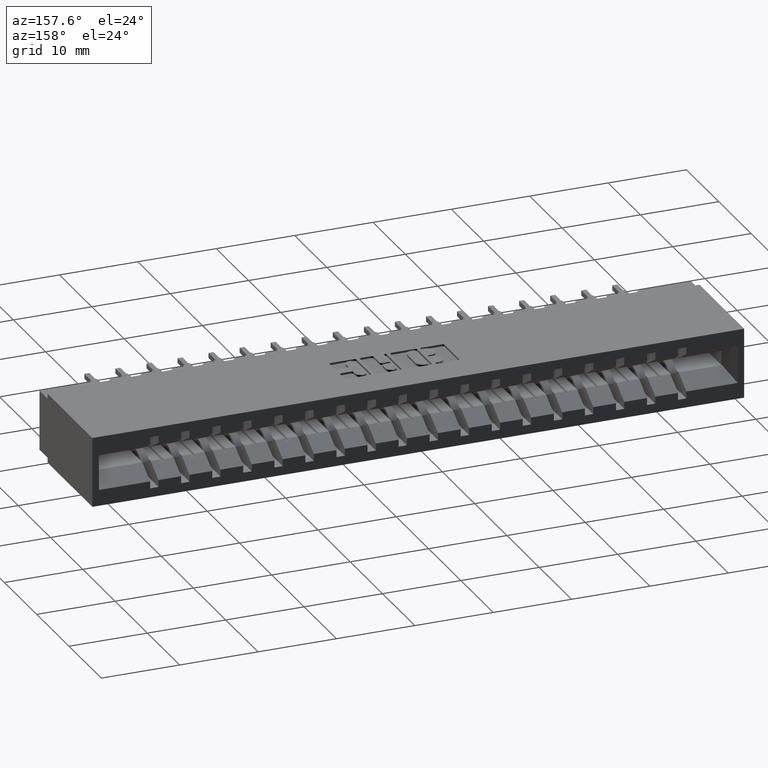
[diagram: clean part render]
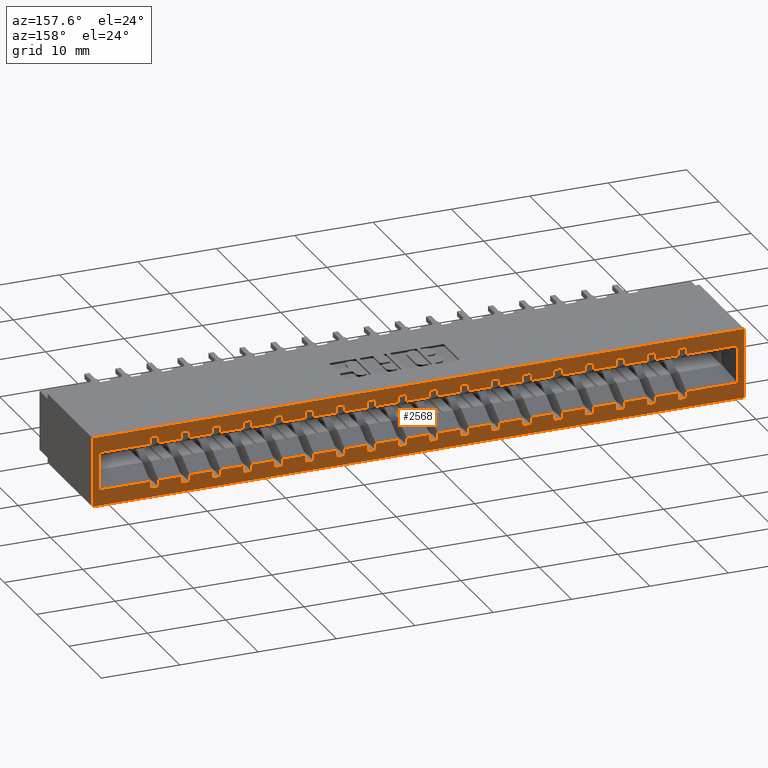
[diagram: same view with one face highlighted and labeled with its STEP entity id]
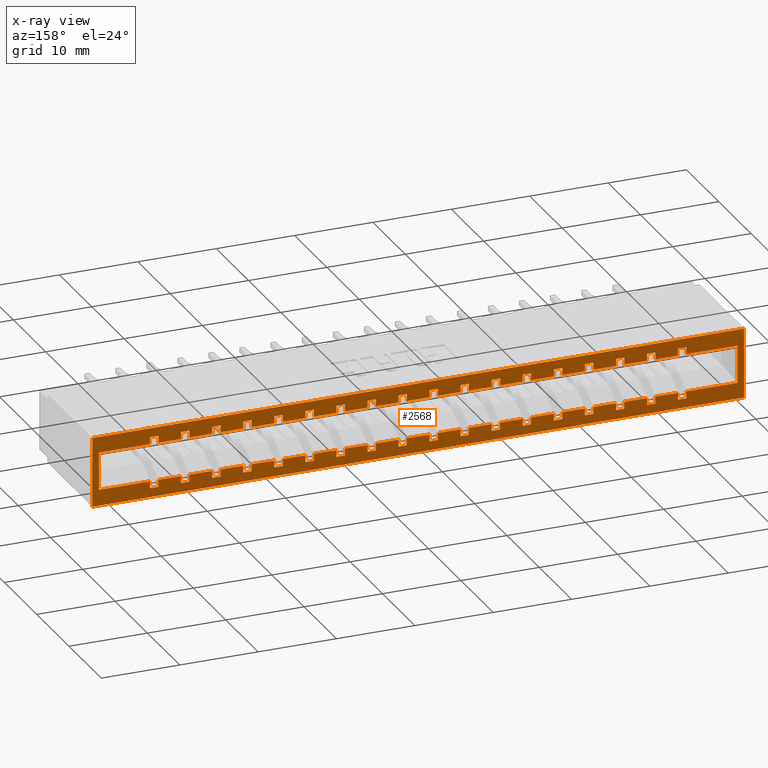
[diagram: x-ray of the same camera — body ghosted, the highlighted face saturated]
A machine part, auxiliary view. The second image highlights one B-rep face of the part: STEP entity #2568.
The next image is the same camera in x-ray: the body ghosted, the highlighted face saturated — about 0% of this face is hidden behind the body in this view.
In plain terms, the highlighted planar face has unit normal (0, -1, 0).
Its self-contained STEP definition (entity closure, byte-faithful):
#20 = EDGE_CURVE ( 'NONE', #17472, #30544, #15998, .T. ) ;
#29 = ORIENTED_EDGE ( 'NONE', *, *, #10752, .T. ) ;
#108 = ORIENTED_EDGE ( 'NONE', *, *, #26731, .T. ) ;
#140 = EDGE_CURVE ( 'NONE', #3628, #28292, #3905, .T. ) ;
#150 = DIRECTION ( 'NONE',  ( -1.000000000000000000, 0.0000000000000000000, 0.0000000000000000000 ) ) ;
#168 = CARTESIAN_POINT ( 'NONE',  ( 0.3320000000000000173, 0.6449999999999999067, -0.2697499999999999898 ) ) ;
#221 = VERTEX_POINT ( 'NONE', #33477 ) ;
#224 = DIRECTION ( 'NONE',  ( 1.000000000000000000, -0.0000000000000000000, -2.307304048702925122E-16 ) ) ;
#251 = EDGE_CURVE ( 'NONE', #12044, #8306, #1834, .T. ) ;
#269 = CARTESIAN_POINT ( 'NONE',  ( 3.412979362203021783, 0.6449999999999999067, -0.08024999999999998801 ) ) ;
#298 = CARTESIAN_POINT ( 'NONE',  ( 3.412979362203021783, 0.6449999999999999067, -0.08024999999999998801 ) ) ;
#308 = CARTESIAN_POINT ( 'NONE',  ( 2.941999999999999726, 0.6449999999999999067, -7.116538834968993064E-17 ) ) ;
#321 = ORIENTED_EDGE ( 'NONE', *, *, #3813, .T. ) ;
#364 = EDGE_CURVE ( 'NONE', #17504, #32701, #25166, .T. ) ;
#371 = VECTOR ( 'NONE', #13438, 39.37007874015748143 ) ;
#395 = DIRECTION ( 'NONE',  ( 0.0000000000000000000, -1.000000000000000000, 0.0000000000000000000 ) ) ;
#399 = DIRECTION ( 'NONE',  ( 2.444074818391192744E-16, 0.0000000000000000000, 1.000000000000000000 ) ) ;
#411 = ORIENTED_EDGE ( 'NONE', *, *, #5006, .T. ) ;
#483 = VERTEX_POINT ( 'NONE', #13724 ) ;
#493 = LINE ( 'NONE', #11045, #17702 ) ;
#572 = CARTESIAN_POINT ( 'NONE',  ( 2.318000000000000060, 0.6449999999999999067, -7.116538834968993064E-17 ) ) ;
#654 = CARTESIAN_POINT ( 'NONE',  ( 2.006000000000000227, 0.6449999999999999067, -0.08024999999999998801 ) ) ;
#669 = VECTOR ( 'NONE', #17517, 39.37007874015748143 ) ;
#696 = CARTESIAN_POINT ( 'NONE',  ( 0.7999999999999998224, 0.6449999999999999067, -0.3049999999999998268 ) ) ;
#732 = CARTESIAN_POINT ( 'NONE',  ( 3.412979362203021783, 0.6449999999999999067, -0.2697499999999999898 ) ) ;
#753 = VECTOR ( 'NONE', #3164, 39.37007874015748143 ) ;
#845 = CARTESIAN_POINT ( 'NONE',  ( 0.4459999999999999520, 0.6449999999999999067, -7.116538834968993064E-17 ) ) ;
#854 = CARTESIAN_POINT ( 'NONE',  ( 1.268000000000000016, 0.6449999999999999067, -0.3049999999999998268 ) ) ;
#887 = CARTESIAN_POINT ( 'NONE',  ( 1.849999999999999867, 0.6449999999999999067, -0.3049999999999998268 ) ) ;
#918 = DIRECTION ( 'NONE',  ( 2.444074818391192744E-16, 0.0000000000000000000, 1.000000000000000000 ) ) ;
#924 = CARTESIAN_POINT ( 'NONE',  ( 0.2899999999999999800, 0.6449999999999999067, -0.04499999999999971384 ) ) ;
#952 = DIRECTION ( 'NONE',  ( 1.000000000000000000, -0.0000000000000000000, -2.307304048702925122E-16 ) ) ;
#955 = EDGE_CURVE ( 'NONE', #33240, #2421, #29591, .T. ) ;
#988 = EDGE_CURVE ( 'NONE', #26880, #29026, #29762, .T. ) ;
#1000 = EDGE_CURVE ( 'NONE', #14101, #30119, #16599, .T. ) ;
#1035 = CARTESIAN_POINT ( 'NONE',  ( 1.069999999999999840, 0.6449999999999999067, -7.116538834968993064E-17 ) ) ;
#1094 = LINE ( 'NONE', #572, #21910 ) ;
#1141 = VERTEX_POINT ( 'NONE', #20075 ) ;
#1150 = DIRECTION ( 'NONE',  ( 2.444074818391192744E-16, 0.0000000000000000000, 1.000000000000000000 ) ) ;
#1178 = CARTESIAN_POINT ( 'NONE',  ( 1.891999999999999904, 0.6449999999999999067, -0.04499999999999972772 ) ) ;
#1250 = CARTESIAN_POINT ( 'NONE',  ( 1.069999999999999840, 0.6449999999999999067, -0.3049999999999998268 ) ) ;
#1325 = VERTEX_POINT ( 'NONE', #24466 ) ;
#1372 = ORIENTED_EDGE ( 'NONE', *, *, #5716, .T. ) ;
#1377 = VERTEX_POINT ( 'NONE', #11533 ) ;
#1387 = DIRECTION ( 'NONE',  ( 2.444074818391192744E-16, 0.0000000000000000000, 1.000000000000000000 ) ) ;
#1392 = EDGE_CURVE ( 'NONE', #33492, #7478, #27237, .T. ) ;
#1420 = CARTESIAN_POINT ( 'NONE',  ( 0.9140000000000001457, 0.6449999999999999067, -0.2697499999999999898 ) ) ;
#1431 = DIRECTION ( 'NONE',  ( 1.000000000000000000, 0.0000000000000000000, 0.0000000000000000000 ) ) ;
#1434 = CARTESIAN_POINT ( 'NONE',  ( 3.412979362203021783, 0.6449999999999999067, -0.2697499999999999898 ) ) ;
#1454 = EDGE_CURVE ( 'NONE', #9338, #27749, #17390, .T. ) ;
#1463 = CARTESIAN_POINT ( 'NONE',  ( 3.412979362203021783, 0.6449999999999999067, -0.08024999999999998801 ) ) ;
#1494 = LINE ( 'NONE', #14795, #9745 ) ;
#1502 = CARTESIAN_POINT ( 'NONE',  ( 0.4879999999999999338, 0.6449999999999999067, -8.085606535424221970E-17 ) ) ;
#1521 = ORIENTED_EDGE ( 'NONE', *, *, #25432, .F. ) ;
#1531 = CARTESIAN_POINT ( 'NONE',  ( 1.580000000000000071, 0.6449999999999999067, -8.085606535424221970E-17 ) ) ;
#1569 = DIRECTION ( 'NONE',  ( 1.000000000000000000, -0.0000000000000000000, -2.307304048702925122E-16 ) ) ;
#1570 = CARTESIAN_POINT ( 'NONE',  ( 1.891999999999999904, 0.6449999999999999067, -8.085606535424221970E-17 ) ) ;
#1577 = CARTESIAN_POINT ( 'NONE',  ( 0.9140000000000000346, 0.6449999999999999067, -7.116538834968993064E-17 ) ) ;
#1624 = VECTOR ( 'NONE', #2983, 39.37007874015748143 ) ;
#1636 = LINE ( 'NONE', #4044, #29118 ) ;
#1651 = LINE ( 'NONE', #9784, #14144 ) ;
#1659 = LINE ( 'NONE', #14615, #15186 ) ;
#1688 = ORIENTED_EDGE ( 'NONE', *, *, #10831, .F. ) ;
#1736 = ORIENTED_EDGE ( 'NONE', *, *, #22747, .F. ) ;
#1749 = LINE ( 'NONE', #12295, #14735 ) ;
#1764 = LINE ( 'NONE', #10405, #11429 ) ;
#1803 = CARTESIAN_POINT ( 'NONE',  ( 1.111999999999999877, 0.6449999999999999067, -8.085606535424221970E-17 ) ) ;
#1822 = CARTESIAN_POINT ( 'NONE',  ( 2.204000000000000181, 0.6449999999999999067, -0.08024999999999998801 ) ) ;
#1829 = CARTESIAN_POINT ( 'NONE',  ( 2.359999999999999876, 0.6449999999999999067, -0.3049999999999998268 ) ) ;
#1832 = VECTOR ( 'NONE', #30877, 39.37007874015748143 ) ;
#1834 = LINE ( 'NONE', #7040, #16422 ) ;
#1849 = ORIENTED_EDGE ( 'NONE', *, *, #18056, .T. ) ;
#1866 = VECTOR ( 'NONE', #12405, 39.37007874015748143 ) ;
#1869 = LINE ( 'NONE', #7394, #16902 ) ;
#1890 = CARTESIAN_POINT ( 'NONE',  ( 1.849999999999999867, 0.6449999999999999067, -7.116538834968993064E-17 ) ) ;
#1896 = EDGE_CURVE ( 'NONE', #27517, #5551, #20516, .T. ) ;
#1923 = EDGE_CURVE ( 'NONE', #14497, #25909, #20359, .T. ) ;
#1935 = LINE ( 'NONE', #30806, #23246 ) ;
#1997 = CARTESIAN_POINT ( 'NONE',  ( 2.941999999999999726, 0.6449999999999999067, -0.08024999999999994638 ) ) ;
#2017 = DIRECTION ( 'NONE',  ( 2.444074818391192744E-16, 0.0000000000000000000, 1.000000000000000000 ) ) ;
#2077 = ORIENTED_EDGE ( 'NONE', *, *, #19515, .F. ) ;
#2079 = LINE ( 'NONE', #14219, #32392 ) ;
#2089 = VECTOR ( 'NONE', #34028, 39.37007874015748143 ) ;
#2131 = VERTEX_POINT ( 'NONE', #21494 ) ;
#2193 = VERTEX_POINT ( 'NONE', #3189 ) ;
#2197 = DIRECTION ( 'NONE',  ( -1.000000000000000000, 0.0000000000000000000, 0.0000000000000000000 ) ) ;
#2214 = VERTEX_POINT ( 'NONE', #13565 ) ;
#2322 = VERTEX_POINT ( 'NONE', #6657 ) ;
#2333 = LINE ( 'NONE', #12880, #2471 ) ;
#2393 = VECTOR ( 'NONE', #12429, 39.37007874015748143 ) ;
#2408 = VECTOR ( 'NONE', #8880, 39.37007874015748143 ) ;
#2421 = VERTEX_POINT ( 'NONE', #20455 ) ;
#2447 = VECTOR ( 'NONE', #28617, 39.37007874015748143 ) ;
#2459 = VECTOR ( 'NONE', #21546, 39.37007874015748143 ) ;
#2471 = VECTOR ( 'NONE', #10308, 39.37007874015748143 ) ;
#2487 = VECTOR ( 'NONE', #1431, 39.37007874015748143 ) ;
#2493 = EDGE_CURVE ( 'NONE', #21779, #16010, #27151, .T. ) ;
#2555 = CARTESIAN_POINT ( 'NONE',  ( 2.473999999999999755, 0.6449999999999999067, -0.3049999999999998268 ) ) ;
#2568 = ADVANCED_FACE ( 'NONE', ( #8698, #2811 ), #21799, .F. ) ;
#2581 = ORIENTED_EDGE ( 'NONE', *, *, #21305, .F. ) ;
#2595 = ORIENTED_EDGE ( 'NONE', *, *, #8647, .T. ) ;
#2617 = VERTEX_POINT ( 'NONE', #16782 ) ;
#2624 = EDGE_CURVE ( 'NONE', #8175, #27337, #2079, .T. ) ;
#2638 = ORIENTED_EDGE ( 'NONE', *, *, #25208, .F. ) ;
#2701 = VERTEX_POINT ( 'NONE', #4648 ) ;
#2711 = EDGE_CURVE ( 'NONE', #28783, #2193, #30120, .T. ) ;
#2765 = CARTESIAN_POINT ( 'NONE',  ( 0.7999999999999998224, 0.6449999999999999067, -0.2697499999999999898 ) ) ;
#2777 = VERTEX_POINT ( 'NONE', #12773 ) ;
#2782 = ORIENTED_EDGE ( 'NONE', *, *, #27418, .T. ) ;
#2811 = FACE_BOUND ( 'NONE', #4264, .T. ) ;
#2819 = ORIENTED_EDGE ( 'NONE', *, *, #31218, .F. ) ;
#2820 = EDGE_CURVE ( 'NONE', #22713, #30053, #13424, .T. ) ;
#2829 = VECTOR ( 'NONE', #31323, 39.37007874015748143 ) ;
#2877 = CARTESIAN_POINT ( 'NONE',  ( 1.268000000000000016, 0.6449999999999999067, -8.085606535424221970E-17 ) ) ;
#2881 = VERTEX_POINT ( 'NONE', #24821 ) ;
#2916 = LINE ( 'NONE', #7644, #8882 ) ;
#2983 = DIRECTION ( 'NONE',  ( -1.000000000000000000, 0.0000000000000000000, 0.0000000000000000000 ) ) ;
#2997 = ORIENTED_EDGE ( 'NONE', *, *, #29797, .F. ) ;
#3002 = DIRECTION ( 'NONE',  ( 2.444074818391192744E-16, 0.0000000000000000000, 1.000000000000000000 ) ) ;
#3032 = VECTOR ( 'NONE', #3860, 39.37007874015748143 ) ;
#3037 = VECTOR ( 'NONE', #7379, 39.37007874015748143 ) ;
#3068 = ORIENTED_EDGE ( 'NONE', *, *, #33318, .F. ) ;
#3105 = CARTESIAN_POINT ( 'NONE',  ( 2.516000000000000014, 0.6449999999999999067, -8.085606535424221970E-17 ) ) ;
#3164 = DIRECTION ( 'NONE',  ( -1.000000000000000000, 0.0000000000000000000, 0.0000000000000000000 ) ) ;
#3175 = CARTESIAN_POINT ( 'NONE',  ( 1.538000000000000034, 0.6449999999999999067, -7.116538834968993064E-17 ) ) ;
#3181 = EDGE_CURVE ( 'NONE', #27249, #23930, #15830, .T. ) ;
#3189 = CARTESIAN_POINT ( 'NONE',  ( 2.827999999999999847, 0.6449999999999999067, -0.04499999999999972772 ) ) ;
#3231 = CARTESIAN_POINT ( 'NONE',  ( 1.891999999999999904, 0.6449999999999999067, -0.3049999999999998268 ) ) ;
#3268 = VERTEX_POINT ( 'NONE', #31908 ) ;
#3305 = CARTESIAN_POINT ( 'NONE',  ( 1.693999999999999950, 0.6449999999999999067, -0.04499999999999971384 ) ) ;
#3325 = EDGE_CURVE ( 'NONE', #12456, #11509, #29651, .T. ) ;
#3390 = LINE ( 'NONE', #21533, #33826 ) ;
#3477 = DIRECTION ( 'NONE',  ( 2.444074818391192744E-16, 0.0000000000000000000, 1.000000000000000000 ) ) ;
#3483 = EDGE_CURVE ( 'NONE', #28674, #1141, #33452, .T. ) ;
#3500 = ORIENTED_EDGE ( 'NONE', *, *, #9987, .F. ) ;
#3552 = DIRECTION ( 'NONE',  ( 2.444074818391192744E-16, 0.0000000000000000000, 1.000000000000000000 ) ) ;
#3595 = LINE ( 'NONE', #16185, #4544 ) ;
#3628 = VERTEX_POINT ( 'NONE', #33776 ) ;
#3646 = EDGE_CURVE ( 'NONE', #23099, #20492, #15287, .T. ) ;
#3690 = VECTOR ( 'NONE', #9087, 39.37007874015748143 ) ;
#3729 = LINE ( 'NONE', #19637, #20279 ) ;
#3786 = DIRECTION ( 'NONE',  ( 2.444074818391192744E-16, 0.0000000000000000000, 1.000000000000000000 ) ) ;
#3809 = EDGE_CURVE ( 'NONE', #483, #2881, #16098, .T. ) ;
#3813 = EDGE_CURVE ( 'NONE', #14386, #3268, #6461, .T. ) ;
#3860 = DIRECTION ( 'NONE',  ( -1.000000000000000000, 0.0000000000000000000, 0.0000000000000000000 ) ) ;
#3876 = ORIENTED_EDGE ( 'NONE', *, *, #20627, .T. ) ;
#3905 = LINE ( 'NONE', #27229, #23030 ) ;
#3908 = CARTESIAN_POINT ( 'NONE',  ( 0.9559999999999998499, 0.6449999999999999067, -0.3049999999999998268 ) ) ;
#3937 = CARTESIAN_POINT ( 'NONE',  ( 1.382000000000000117, 0.6449999999999999067, -7.116538834968993064E-17 ) ) ;
#3944 = CARTESIAN_POINT ( 'NONE',  ( 0.2899999999999999245, 0.6449999999999999067, -0.3049999999999998268 ) ) ;
#3952 = EDGE_CURVE ( 'NONE', #19763, #13200, #16206, .T. ) ;
#3978 = VERTEX_POINT ( 'NONE', #1178 ) ;
#4006 = ORIENTED_EDGE ( 'NONE', *, *, #1392, .T. ) ;
#4020 = VERTEX_POINT ( 'NONE', #18983 ) ;
#4044 = CARTESIAN_POINT ( 'NONE',  ( 0.7999999999999999334, 0.6449999999999999067, -8.085606535424221970E-17 ) ) ;
#4046 = DIRECTION ( 'NONE',  ( 1.000000000000000000, -0.0000000000000000000, -2.307304048702925122E-16 ) ) ;
#4047 = VERTEX_POINT ( 'NONE', #654 ) ;
#4124 = EDGE_CURVE ( 'NONE', #5042, #29026, #17238, .T. ) ;
#4188 = DIRECTION ( 'NONE',  ( -1.000000000000000000, 0.0000000000000000000, 0.0000000000000000000 ) ) ;
#4199 = LINE ( 'NONE', #9744, #14015 ) ;
#4202 = EDGE_CURVE ( 'NONE', #22713, #5103, #27784, .T. ) ;
#4208 = CARTESIAN_POINT ( 'NONE',  ( 0.4879999999999999338, 0.6449999999999999067, -8.085606535424221970E-17 ) ) ;
#4250 = VECTOR ( 'NONE', #14476, 39.37007874015748143 ) ;
#4257 = ORIENTED_EDGE ( 'NONE', *, *, #251, .F. ) ;
#4264 = EDGE_LOOP ( 'NONE', ( #10959, #22624, #15227, #2782, #11030, #21119, #31237, #30741, #22968, #2997, #22499, #26614, #8825, #6536, #33025, #19803, #6179, #18449, #14780, #28626, #3500, #21252, #108, #23421, #4272, #20094, #6578, #11992, #33582, #30343, #18473, #16700, #22365, #27524, #2595, #26839, #16944, #16450, #22988, #24345, #33228, #3068, #14343, #32079, #10446, #28010, #18913, #4560, #16792, #6927, #32982, #19907, #28470, #9219, #23729, #12298, #10738, #15953, #29, #21942, #12093, #32261, #1849, #31734, #23329, #26640, #24589, #32888, #23224, #7026, #23181, #30818, #1521, #4446, #33658, #16408, #5622, #30188, #32724, #4006, #1736, #28177, #31864, #23106, #24120, #14704, #4280, #26036, #16230, #11211, #25795, #22196, #23332, #27856, #9900, #321, #18253, #4557, #17620, #26678, #30936, #1688, #19390, #31199, #9872, #11953, #19719, #30225, #2638, #28390, #22956, #18651, #19955, #30226, #9014, #31598, #25959, #31095, #20096, #16374, #26905, #15519, #6406, #22742, #4257, #2581, #411, #1372, #2077, #2819, #33365, #16075, #14697, #6538, #6987, #11675, #17122, #16228, #24940, #8268, #24667, #7258, #18869, #3876, #27080, #29605, #10783, #28176 ) ) ;
#4270 = CARTESIAN_POINT ( 'NONE',  ( 3.412979362203021783, 0.6449999999999999067, -0.2697499999999999898 ) ) ;
#4272 = ORIENTED_EDGE ( 'NONE', *, *, #26513, .F. ) ;
#4280 = ORIENTED_EDGE ( 'NONE', *, *, #29631, .T. ) ;
#4284 = EDGE_CURVE ( 'NONE', #20034, #24823, #20700, .T. ) ;
#4291 = CARTESIAN_POINT ( 'NONE',  ( 1.382000000000000117, 0.6449999999999999067, -0.2697499999999999898 ) ) ;
#4292 = DIRECTION ( 'NONE',  ( 2.444074818391192744E-16, 0.0000000000000000000, 1.000000000000000000 ) ) ;
#4293 = EDGE_CURVE ( 'NONE', #31013, #14388, #13101, .T. ) ;
#4340 = CARTESIAN_POINT ( 'NONE',  ( 2.629999999999999449, 0.6449999999999999067, -0.04499999999999971384 ) ) ;
#4369 = ORIENTED_EDGE ( 'NONE', *, *, #7768, .T. ) ;
#4395 = DIRECTION ( 'NONE',  ( 2.444074818391192744E-16, 0.0000000000000000000, 1.000000000000000000 ) ) ;
#4445 = CARTESIAN_POINT ( 'NONE',  ( 3.412979362203021783, 0.6449999999999999067, -0.08024999999999998801 ) ) ;
#4446 = ORIENTED_EDGE ( 'NONE', *, *, #25371, .F. ) ;
#4453 = LINE ( 'NONE', #6364, #14049 ) ;
#4544 = VECTOR ( 'NONE', #26744, 39.37007874015748143 ) ;
#4557 = ORIENTED_EDGE ( 'NONE', *, *, #3483, .F. ) ;
#4560 = ORIENTED_EDGE ( 'NONE', *, *, #1923, .T. ) ;
#4648 = CARTESIAN_POINT ( 'NONE',  ( 2.473999999999999755, 0.6449999999999999067, -0.04499999999999971384 ) ) ;
#4755 = VECTOR ( 'NONE', #23243, 39.37007874015748143 ) ;
#4804 = CARTESIAN_POINT ( 'NONE',  ( 0.2899999999999999800, 0.6449999999999999067, -0.04499999999999971384 ) ) ;
#4847 = EDGE_CURVE ( 'NONE', #28674, #4020, #29445, .T. ) ;
#4908 = VECTOR ( 'NONE', #1150, 39.37007874015748143 ) ;
#4927 = VECTOR ( 'NONE', #28184, 39.37007874015748143 ) ;
#4972 = DIRECTION ( 'NONE',  ( -1.000000000000000000, 0.0000000000000000000, 0.0000000000000000000 ) ) ;
#4983 = CARTESIAN_POINT ( 'NONE',  ( 0.2899999999999999245, 0.6449999999999999067, -0.2697499999999999898 ) ) ;
#5006 = EDGE_CURVE ( 'NONE', #29013, #32221, #22532, .T. ) ;
#5030 = EDGE_CURVE ( 'NONE', #18375, #18403, #1636, .T. ) ;
#5042 = VERTEX_POINT ( 'NONE', #25125 ) ;
#5044 = VERTEX_POINT ( 'NONE', #20117 ) ;
#5066 = DIRECTION ( 'NONE',  ( -1.000000000000000000, 0.0000000000000000000, 0.0000000000000000000 ) ) ;
#5099 = CARTESIAN_POINT ( 'NONE',  ( 3.274000000000000021, 0.6449999999999999067, -0.3499999999999999778 ) ) ;
#5103 = VERTEX_POINT ( 'NONE', #10590 ) ;
#5117 = CARTESIAN_POINT ( 'NONE',  ( 1.580000000000000071, 0.6449999999999999067, -0.3049999999999998268 ) ) ;
#5119 = VECTOR ( 'NONE', #21698, 39.37007874015748143 ) ;
#5132 = CARTESIAN_POINT ( 'NONE',  ( 3.412979362203021783, 0.6449999999999999067, -0.2697499999999999898 ) ) ;
#5139 = VECTOR ( 'NONE', #32605, 39.37007874015748143 ) ;
#5181 = CARTESIAN_POINT ( 'NONE',  ( 2.048000000000000043, 0.6449999999999999067, -0.04499999999999972772 ) ) ;
#5316 = VECTOR ( 'NONE', #952, 39.37007874015748143 ) ;
#5350 = DIRECTION ( 'NONE',  ( 2.444074818391192744E-16, 0.0000000000000000000, 1.000000000000000000 ) ) ;
#5421 = VERTEX_POINT ( 'NONE', #20369 ) ;
#5423 = CARTESIAN_POINT ( 'NONE',  ( 2.785999999999999588, 0.6449999999999999067, -7.116538834968993064E-17 ) ) ;
#5424 = VECTOR ( 'NONE', #23561, 39.37007874015748143 ) ;
#5500 = CARTESIAN_POINT ( 'NONE',  ( 2.204000000000000181, 0.6449999999999999067, -0.2697499999999999898 ) ) ;
#5545 = VERTEX_POINT ( 'NONE', #4983 ) ;
#5551 = VERTEX_POINT ( 'NONE', #23949 ) ;
#5572 = CARTESIAN_POINT ( 'NONE',  ( 3.412979362203021783, 0.6449999999999999067, -0.08024999999999998801 ) ) ;
#5581 = CARTESIAN_POINT ( 'NONE',  ( 3.412979362203021783, 0.6449999999999999067, -0.08024999999999998801 ) ) ;
#5622 = ORIENTED_EDGE ( 'NONE', *, *, #12028, .F. ) ;
#5669 = VECTOR ( 'NONE', #14719, 39.37007874015748143 ) ;
#5682 = LINE ( 'NONE', #845, #8407 ) ;
#5696 = VERTEX_POINT ( 'NONE', #27065 ) ;
#5716 = EDGE_CURVE ( 'NONE', #32221, #28193, #24814, .T. ) ;
#5752 = LINE ( 'NONE', #16104, #9622 ) ;
#5756 = LINE ( 'NONE', #8717, #2408 ) ;
#5761 = VECTOR ( 'NONE', #3002, 39.37007874015748143 ) ;
#5766 = CARTESIAN_POINT ( 'NONE',  ( 1.381999999999999895, 0.6449999999999999067, -0.3049999999999998268 ) ) ;
#5767 = LINE ( 'NONE', #5953, #5761 ) ;
#5806 = VECTOR ( 'NONE', #28602, 39.37007874015748143 ) ;
#5870 = CARTESIAN_POINT ( 'NONE',  ( 3.412979362203021783, 0.6449999999999999067, -0.2697499999999999898 ) ) ;
#5927 = DIRECTION ( 'NONE',  ( 0.0000000000000000000, -0.0000000000000000000, -1.000000000000000000 ) ) ;
#5953 = CARTESIAN_POINT ( 'NONE',  ( 1.382000000000000117, 0.6449999999999999067, -7.116538834968993064E-17 ) ) ;
#6038 = CARTESIAN_POINT ( 'NONE',  ( 1.735999999999999988, 0.6449999999999999067, -0.08024999999999998801 ) ) ;
#6084 = DIRECTION ( 'NONE',  ( 2.444074818391192744E-16, 0.0000000000000000000, 1.000000000000000000 ) ) ;
#6099 = CARTESIAN_POINT ( 'NONE',  ( 0.4879999999999998228, 0.6449999999999999067, -0.08024999999999998801 ) ) ;
#6101 = VERTEX_POINT ( 'NONE', #887 ) ;
#6113 = CARTESIAN_POINT ( 'NONE',  ( 2.629999999999999449, 0.6449999999999999067, -7.116538834968993064E-17 ) ) ;
#6130 = VECTOR ( 'NONE', #28064, 39.37007874015748143 ) ;
#6131 = DIRECTION ( 'NONE',  ( 1.000000000000000000, -0.0000000000000000000, -2.307304048702925122E-16 ) ) ;
#6133 = VERTEX_POINT ( 'NONE', #696 ) ;
#6179 = ORIENTED_EDGE ( 'NONE', *, *, #9256, .F. ) ;
#6193 = LINE ( 'NONE', #9330, #23268 ) ;
#6364 = CARTESIAN_POINT ( 'NONE',  ( 3.274000000000000021, 0.6449999999999999067, 0.0000000000000000000 ) ) ;
#6366 = VECTOR ( 'NONE', #21042, 39.37007874015748143 ) ;
#6386 = VERTEX_POINT ( 'NONE', #34078 ) ;
#6406 = ORIENTED_EDGE ( 'NONE', *, *, #27929, .T. ) ;
#6461 = LINE ( 'NONE', #22141, #14845 ) ;
#6467 = LINE ( 'NONE', #24914, #24518 ) ;
#6481 = CARTESIAN_POINT ( 'NONE',  ( 2.473999999999999755, 0.6449999999999999067, -0.08024999999999998801 ) ) ;
#6491 = EDGE_CURVE ( 'NONE', #1377, #25081, #8642, .T. ) ;
#6523 = EDGE_CURVE ( 'NONE', #30819, #33492, #8452, .T. ) ;
#6536 = ORIENTED_EDGE ( 'NONE', *, *, #31342, .F. ) ;
#6538 = ORIENTED_EDGE ( 'NONE', *, *, #14199, .F. ) ;
#6568 = LINE ( 'NONE', #19696, #24953 ) ;
#6578 = ORIENTED_EDGE ( 'NONE', *, *, #11595, .T. ) ;
#6597 = LINE ( 'NONE', #17114, #25520 ) ;
#6657 = CARTESIAN_POINT ( 'NONE',  ( 2.516000000000000014, 0.6449999999999999067, -0.2697499999999999898 ) ) ;
#6666 = EDGE_CURVE ( 'NONE', #13419, #27749, #13098, .T. ) ;
#6714 = VERTEX_POINT ( 'NONE', #19249 ) ;
#6731 = CARTESIAN_POINT ( 'NONE',  ( 0.0000000000000000000, 0.6449999999999999067, -0.3499999999999999778 ) ) ;
#6734 = DIRECTION ( 'NONE',  ( 1.000000000000000000, -0.0000000000000000000, -2.307304048702925122E-16 ) ) ;
#6762 = CARTESIAN_POINT ( 'NONE',  ( 0.7579999999999998961, 0.6449999999999999067, -0.2697499999999999898 ) ) ;
#6927 = ORIENTED_EDGE ( 'NONE', *, *, #3952, .F. ) ;
#6933 = LINE ( 'NONE', #9519, #18963 ) ;
#6960 = CARTESIAN_POINT ( 'NONE',  ( 3.412979362203021783, 0.6449999999999999067, -0.08024999999999998801 ) ) ;
#6961 = CARTESIAN_POINT ( 'NONE',  ( 3.412979362203021783, 0.6449999999999999067, -0.08024999999999998801 ) ) ;
#6983 = LINE ( 'NONE', #4208, #32307 ) ;
#6987 = ORIENTED_EDGE ( 'NONE', *, *, #4284, .T. ) ;
#7018 = CARTESIAN_POINT ( 'NONE',  ( 2.629999999999999449, 0.6449999999999999067, -0.3049999999999998268 ) ) ;
#7026 = ORIENTED_EDGE ( 'NONE', *, *, #9978, .F. ) ;
#7040 = CARTESIAN_POINT ( 'NONE',  ( 3.412979362203021783, 0.6449999999999999067, -0.2697499999999999898 ) ) ;
#7113 = EDGE_CURVE ( 'NONE', #12456, #10863, #10586, .T. ) ;
#7207 = CARTESIAN_POINT ( 'NONE',  ( 0.9139999999999998126, 0.6449999999999999067, -0.3049999999999998268 ) ) ;
#7211 = CARTESIAN_POINT ( 'NONE',  ( 3.412979362203021783, 0.6449999999999999067, -0.2697499999999999898 ) ) ;
#7258 = ORIENTED_EDGE ( 'NONE', *, *, #16071, .F. ) ;
#7334 = CARTESIAN_POINT ( 'NONE',  ( 2.161999999999999922, 0.6449999999999999067, -7.116538834968993064E-17 ) ) ;
#7379 = DIRECTION ( 'NONE',  ( -1.000000000000000000, 0.0000000000000000000, 0.0000000000000000000 ) ) ;
#7390 = EDGE_CURVE ( 'NONE', #1141, #3268, #1935, .T. ) ;
#7391 = VECTOR ( 'NONE', #21473, 39.37007874015748143 ) ;
#7394 = CARTESIAN_POINT ( 'NONE',  ( 3.412979362203021783, 0.6449999999999999067, -0.2697499999999999898 ) ) ;
#7409 = CARTESIAN_POINT ( 'NONE',  ( 2.473999999999999755, 0.6449999999999999067, -0.04499999999999971384 ) ) ;
#7423 = CARTESIAN_POINT ( 'NONE',  ( 2.204000000000000181, 0.6449999999999999067, -8.085606535424221970E-17 ) ) ;
#7445 = EDGE_CURVE ( 'NONE', #30053, #9610, #33220, .T. ) ;
#7449 = VERTEX_POINT ( 'NONE', #20756 ) ;
#7470 = CARTESIAN_POINT ( 'NONE',  ( 2.473999999999999755, 0.6449999999999999067, -0.3049999999999998268 ) ) ;
#7478 = VERTEX_POINT ( 'NONE', #168 ) ;
#7490 = VECTOR ( 'NONE', #3552, 39.37007874015748143 ) ;
#7494 = VECTOR ( 'NONE', #14742, 39.37007874015748143 ) ;
#7603 = CARTESIAN_POINT ( 'NONE',  ( 2.048000000000000043, 0.6449999999999999067, -8.085606535424221970E-17 ) ) ;
#7640 = VERTEX_POINT ( 'NONE', #19168 ) ;
#7644 = CARTESIAN_POINT ( 'NONE',  ( 2.671999999999999709, 0.6449999999999999067, -8.085606535424221970E-17 ) ) ;
#7653 = VERTEX_POINT ( 'NONE', #6038 ) ;
#7666 = EDGE_CURVE ( 'NONE', #20492, #3978, #21924, .T. ) ;
#7704 = VERTEX_POINT ( 'NONE', #22081 ) ;
#7759 = LINE ( 'NONE', #7409, #17806 ) ;
#7760 = CARTESIAN_POINT ( 'NONE',  ( 0.0000000000000000000, 0.6449999999999999067, -0.3499999999999999778 ) ) ;
#7768 = EDGE_CURVE ( 'NONE', #14529, #14101, #25219, .T. ) ;
#7802 = DIRECTION ( 'NONE',  ( 2.444074818391192744E-16, 0.0000000000000000000, 1.000000000000000000 ) ) ;
#7813 = EDGE_CURVE ( 'NONE', #13294, #6714, #6193, .T. ) ;
#7886 = EDGE_LOOP ( 'NONE', ( #24919, #21185, #25097, #4369 ) ) ;
#7950 = VECTOR ( 'NONE', #4046, 39.37007874015748143 ) ;
#8096 = LINE ( 'NONE', #26034, #21174 ) ;
#8154 = CARTESIAN_POINT ( 'NONE',  ( 1.849999999999999867, 0.6449999999999999067, -0.08024999999999996025 ) ) ;
#8175 = VERTEX_POINT ( 'NONE', #5766 ) ;
#8208 = EDGE_CURVE ( 'NONE', #32493, #15926, #25630, .T. ) ;
#8254 = CARTESIAN_POINT ( 'NONE',  ( 2.359999999999999876, 0.6449999999999999067, -8.085606535424221970E-17 ) ) ;
#8262 = DIRECTION ( 'NONE',  ( 1.000000000000000000, -0.0000000000000000000, -2.307304048702925122E-16 ) ) ;
#8268 = ORIENTED_EDGE ( 'NONE', *, *, #13556, .T. ) ;
#8306 = VERTEX_POINT ( 'NONE', #22522 ) ;
#8324 = EDGE_CURVE ( 'NONE', #26371, #17504, #25119, .T. ) ;
#8333 = VECTOR ( 'NONE', #11733, 39.37007874015748143 ) ;
#8351 = DIRECTION ( 'NONE',  ( 2.444074818391192744E-16, 0.0000000000000000000, 1.000000000000000000 ) ) ;
#8407 = VECTOR ( 'NONE', #13461, 39.37007874015748143 ) ;
#8436 = LINE ( 'NONE', #26922, #371 ) ;
#8448 = VECTOR ( 'NONE', #31076, 39.37007874015748143 ) ;
#8452 = LINE ( 'NONE', #3944, #8333 ) ;
#8479 = CARTESIAN_POINT ( 'NONE',  ( 1.735999999999999988, 0.6449999999999999067, -0.2697499999999999898 ) ) ;
#8490 = VECTOR ( 'NONE', #15429, 39.37007874015748143 ) ;
#8492 = CARTESIAN_POINT ( 'NONE',  ( 2.941999999999999726, 0.6449999999999999067, -0.04499999999999971384 ) ) ;
#8499 = CARTESIAN_POINT ( 'NONE',  ( 2.983999999999999986, 0.6449999999999999067, -0.2697499999999999898 ) ) ;
#8504 = VECTOR ( 'NONE', #9335, 39.37007874015748143 ) ;
#8642 = LINE ( 'NONE', #11570, #18801 ) ;
#8647 = EDGE_CURVE ( 'NONE', #23099, #7653, #20066, .T. ) ;
#8698 = FACE_OUTER_BOUND ( 'NONE', #7886, .T. ) ;
#8717 = CARTESIAN_POINT ( 'NONE',  ( 0.2899999999999999800, 0.6449999999999999067, -7.116538834968993064E-17 ) ) ;
#8749 = CARTESIAN_POINT ( 'NONE',  ( 1.693999999999999728, 0.6449999999999999067, -0.3049999999999998268 ) ) ;
#8819 = CARTESIAN_POINT ( 'NONE',  ( 1.538000000000000034, 0.6449999999999999067, -0.04499999999999971384 ) ) ;
#8825 = ORIENTED_EDGE ( 'NONE', *, *, #1896, .F. ) ;
#8827 = VERTEX_POINT ( 'NONE', #5181 ) ;
#8830 = DIRECTION ( 'NONE',  ( 2.444074818391192744E-16, 0.0000000000000000000, 1.000000000000000000 ) ) ;
#8880 = DIRECTION ( 'NONE',  ( 2.444074818391192744E-16, 0.0000000000000000000, 1.000000000000000000 ) ) ;
#8882 = VECTOR ( 'NONE', #23662, 39.37007874015748143 ) ;
#8898 = CARTESIAN_POINT ( 'NONE',  ( 1.069999999999999840, 0.6449999999999999067, -0.3049999999999998268 ) ) ;
#8916 = EDGE_CURVE ( 'NONE', #22612, #2421, #27279, .T. ) ;
#8922 = VECTOR ( 'NONE', #5066, 39.37007874015748143 ) ;
#8953 = DIRECTION ( 'NONE',  ( -1.000000000000000000, 0.0000000000000000000, 0.0000000000000000000 ) ) ;
#9014 = ORIENTED_EDGE ( 'NONE', *, *, #15824, .T. ) ;
#9062 = DIRECTION ( 'NONE',  ( 2.444074818391192744E-16, 0.0000000000000000000, 1.000000000000000000 ) ) ;
#9087 = DIRECTION ( 'NONE',  ( 2.444074818391192744E-16, 0.0000000000000000000, 1.000000000000000000 ) ) ;
#9101 = DIRECTION ( 'NONE',  ( 1.000000000000000000, -0.0000000000000000000, -2.307304048702925122E-16 ) ) ;
#9108 = VERTEX_POINT ( 'NONE', #22252 ) ;
#9141 = DIRECTION ( 'NONE',  ( 2.444074818391192744E-16, 0.0000000000000000000, 1.000000000000000000 ) ) ;
#9219 = ORIENTED_EDGE ( 'NONE', *, *, #27893, .F. ) ;
#9246 = VECTOR ( 'NONE', #11837, 39.37007874015748143 ) ;
#9256 = EDGE_CURVE ( 'NONE', #2701, #30544, #7759, .T. ) ;
#9286 = EDGE_CURVE ( 'NONE', #11275, #8306, #31270, .T. ) ;
#9299 = DIRECTION ( 'NONE',  ( 2.444074818391192744E-16, 0.0000000000000000000, 1.000000000000000000 ) ) ;
#9330 = CARTESIAN_POINT ( 'NONE',  ( 0.6019999999999998685, 0.6449999999999999067, -0.04499999999999971384 ) ) ;
#9335 = DIRECTION ( 'NONE',  ( 1.000000000000000000, -0.0000000000000000000, -2.307304048702925122E-16 ) ) ;
#9338 = VERTEX_POINT ( 'NONE', #21691 ) ;
#9426 = DIRECTION ( 'NONE',  ( 2.444074818391192744E-16, 0.0000000000000000000, 1.000000000000000000 ) ) ;
#9443 = DIRECTION ( 'NONE',  ( 1.000000000000000000, -0.0000000000000000000, -2.307304048702925122E-16 ) ) ;
#9519 = CARTESIAN_POINT ( 'NONE',  ( 1.538000000000000034, 0.6449999999999999067, -0.04499999999999971384 ) ) ;
#9527 = DIRECTION ( 'NONE',  ( 2.444074818391192744E-16, 0.0000000000000000000, 1.000000000000000000 ) ) ;
#9536 = EDGE_CURVE ( 'NONE', #19398, #14388, #30713, .T. ) ;
#9558 = CARTESIAN_POINT ( 'NONE',  ( 1.693999999999999950, 0.6449999999999999067, -0.04499999999999971384 ) ) ;
#9583 = CARTESIAN_POINT ( 'NONE',  ( 3.412979362203021783, 0.6449999999999999067, -0.2697499999999999898 ) ) ;
#9610 = VERTEX_POINT ( 'NONE', #33796 ) ;
#9622 = VECTOR ( 'NONE', #23721, 39.37007874015748143 ) ;
#9632 = EDGE_CURVE ( 'NONE', #5044, #7704, #17720, .T. ) ;
#9730 = CARTESIAN_POINT ( 'NONE',  ( 0.3319999999999999063, 0.6449999999999999067, -0.3049999999999998268 ) ) ;
#9744 = CARTESIAN_POINT ( 'NONE',  ( 3.412979362203021783, 0.6449999999999999067, -0.2697499999999999898 ) ) ;
#9745 = VECTOR ( 'NONE', #9443, 39.37007874015748143 ) ;
#9784 = CARTESIAN_POINT ( 'NONE',  ( 2.006000000000000227, 0.6449999999999999067, -7.116538834968993064E-17 ) ) ;
#9801 = CARTESIAN_POINT ( 'NONE',  ( 2.629999999999999449, 0.6449999999999999067, -0.2697499999999999898 ) ) ;
#9853 = LINE ( 'NONE', #22261, #20937 ) ;
#9867 = VERTEX_POINT ( 'NONE', #6481 ) ;
#9868 = CARTESIAN_POINT ( 'NONE',  ( 0.6019999999999998685, 0.6449999999999999067, -0.04499999999999971384 ) ) ;
#9872 = ORIENTED_EDGE ( 'NONE', *, *, #15664, .F. ) ;
#9900 = ORIENTED_EDGE ( 'NONE', *, *, #18597, .T. ) ;
#9904 = DIRECTION ( 'NONE',  ( -1.000000000000000000, 0.0000000000000000000, 0.0000000000000000000 ) ) ;
#9944 = EDGE_CURVE ( 'NONE', #2214, #5696, #22160, .T. ) ;
#9978 = EDGE_CURVE ( 'NONE', #483, #2777, #28579, .T. ) ;
#9987 = EDGE_CURVE ( 'NONE', #1325, #11256, #33935, .T. ) ;
#10014 = DIRECTION ( 'NONE',  ( 1.000000000000000000, -0.0000000000000000000, -2.307304048702925122E-16 ) ) ;
#10022 = LINE ( 'NONE', #23641, #22413 ) ;
#10058 = EDGE_CURVE ( 'NONE', #27337, #30869, #12332, .T. ) ;
#10165 = EDGE_CURVE ( 'NONE', #2777, #32701, #19491, .T. ) ;
#10227 = CARTESIAN_POINT ( 'NONE',  ( 3.412979362203021783, 0.6449999999999999067, -0.2697499999999999898 ) ) ;
#10255 = DIRECTION ( 'NONE',  ( 2.444074818391192744E-16, 0.0000000000000000000, 1.000000000000000000 ) ) ;
#10257 = CARTESIAN_POINT ( 'NONE',  ( 2.516000000000000014, 0.6449999999999999067, -0.3049999999999998268 ) ) ;
#10292 = CARTESIAN_POINT ( 'NONE',  ( 1.423999999999999932, 0.6449999999999999067, -0.3049999999999998268 ) ) ;
#10308 = DIRECTION ( 'NONE',  ( 2.444074818391192744E-16, 0.0000000000000000000, 1.000000000000000000 ) ) ;
#10405 = CARTESIAN_POINT ( 'NONE',  ( 1.693999999999999950, 0.6449999999999999067, -7.116538834968993064E-17 ) ) ;
#10428 = LINE ( 'NONE', #14317, #27369 ) ;
#10446 = ORIENTED_EDGE ( 'NONE', *, *, #16438, .F. ) ;
#10465 = EDGE_CURVE ( 'NONE', #5421, #7640, #8096, .T. ) ;
#10521 = CARTESIAN_POINT ( 'NONE',  ( 1.382000000000000117, 0.6449999999999999067, -0.04499999999999971384 ) ) ;
#10586 = LINE ( 'NONE', #21109, #20935 ) ;
#10590 = CARTESIAN_POINT ( 'NONE',  ( 2.983999999999999986, 0.6449999999999999067, -0.3049999999999998268 ) ) ;
#10738 = ORIENTED_EDGE ( 'NONE', *, *, #33446, .F. ) ;
#10752 = EDGE_CURVE ( 'NONE', #9108, #18375, #19641, .T. ) ;
#10781 = CARTESIAN_POINT ( 'NONE',  ( 2.983999999999999986, 0.6449999999999999067, -8.085606535424221970E-17 ) ) ;
#10783 = ORIENTED_EDGE ( 'NONE', *, *, #4202, .T. ) ;
#10831 = EDGE_CURVE ( 'NONE', #13003, #32493, #20476, .T. ) ;
#10863 = VERTEX_POINT ( 'NONE', #9801 ) ;
#10869 = VECTOR ( 'NONE', #4188, 39.37007874015748143 ) ;
#10899 = VERTEX_POINT ( 'NONE', #30873 ) ;
#10920 = EDGE_CURVE ( 'NONE', #221, #31083, #2333, .T. ) ;
#10942 = VECTOR ( 'NONE', #9426, 39.37007874015748143 ) ;
#10959 = ORIENTED_EDGE ( 'NONE', *, *, #6491, .F. ) ;
#10987 = EDGE_CURVE ( 'NONE', #8175, #28345, #5767, .T. ) ;
#11010 = DIRECTION ( 'NONE',  ( -1.000000000000000000, 0.0000000000000000000, 0.0000000000000000000 ) ) ;
#11030 = ORIENTED_EDGE ( 'NONE', *, *, #14763, .F. ) ;
#11031 = EDGE_CURVE ( 'NONE', #11627, #33350, #20108, .T. ) ;
#11045 = CARTESIAN_POINT ( 'NONE',  ( 3.412979362203021783, 0.6449999999999999067, -0.08024999999999998801 ) ) ;
#11056 = CARTESIAN_POINT ( 'NONE',  ( 0.7579999999999997851, 0.6449999999999999067, -0.3049999999999998268 ) ) ;
#11152 = CARTESIAN_POINT ( 'NONE',  ( 2.671999999999999709, 0.6449999999999999067, -0.2697499999999999898 ) ) ;
#11177 = CARTESIAN_POINT ( 'NONE',  ( 2.827999999999999847, 0.6449999999999999067, -8.085606535424221970E-17 ) ) ;
#11211 = ORIENTED_EDGE ( 'NONE', *, *, #18525, .F. ) ;
#11256 = VERTEX_POINT ( 'NONE', #17682 ) ;
#11275 = VERTEX_POINT ( 'NONE', #31361 ) ;
#11296 = VECTOR ( 'NONE', #19649, 39.37007874015748143 ) ;
#11429 = VECTOR ( 'NONE', #28545, 39.37007874015748143 ) ;
#11455 = CARTESIAN_POINT ( 'NONE',  ( 2.671999999999999709, 0.6449999999999999067, -0.3049999999999998268 ) ) ;
#11509 = VERTEX_POINT ( 'NONE', #11455 ) ;
#11533 = CARTESIAN_POINT ( 'NONE',  ( 3.241402622583513526, 0.6449999999999999067, -0.2697499999999999898 ) ) ;
#11558 = VECTOR ( 'NONE', #11701, 39.37007874015748143 ) ;
#11570 = CARTESIAN_POINT ( 'NONE',  ( 3.412979362203021783, 0.6449999999999999067, -0.2697499999999999898 ) ) ;
#11594 = DIRECTION ( 'NONE',  ( 2.444074818391192744E-16, 0.0000000000000000000, 1.000000000000000000 ) ) ;
#11595 = EDGE_CURVE ( 'NONE', #2214, #16482, #33390, .T. ) ;
#11627 = VERTEX_POINT ( 'NONE', #17805 ) ;
#11636 = DIRECTION ( 'NONE',  ( 2.444074818391192744E-16, 0.0000000000000000000, 1.000000000000000000 ) ) ;
#11675 = ORIENTED_EDGE ( 'NONE', *, *, #33704, .T. ) ;
#11700 = CARTESIAN_POINT ( 'NONE',  ( 0.3319999999999999618, 0.6449999999999999067, -8.085606535424221970E-17 ) ) ;
#11701 = DIRECTION ( 'NONE',  ( 2.444074818391192744E-16, 0.0000000000000000000, 1.000000000000000000 ) ) ;
#11718 = CARTESIAN_POINT ( 'NONE',  ( 0.6439999999999999059, 0.6449999999999999067, -8.085606535424221970E-17 ) ) ;
#11733 = DIRECTION ( 'NONE',  ( 1.000000000000000000, -0.0000000000000000000, -2.307304048702925122E-16 ) ) ;
#11764 = VECTOR ( 'NONE', #24243, 39.37007874015748143 ) ;
#11766 = VECTOR ( 'NONE', #9299, 39.37007874015748143 ) ;
#11837 = DIRECTION ( 'NONE',  ( 1.000000000000000000, -0.0000000000000000000, -2.307304048702925122E-16 ) ) ;
#11845 = VECTOR ( 'NONE', #8830, 39.37007874015748143 ) ;
#11915 = DIRECTION ( 'NONE',  ( 1.000000000000000000, -0.0000000000000000000, -2.307304048702925122E-16 ) ) ;
#11953 = ORIENTED_EDGE ( 'NONE', *, *, #10987, .F. ) ;
#11987 = EDGE_CURVE ( 'NONE', #4047, #20039, #31236, .T. ) ;
#11992 = ORIENTED_EDGE ( 'NONE', *, *, #26400, .T. ) ;
#12028 = EDGE_CURVE ( 'NONE', #5545, #13776, #25516, .T. ) ;
#12044 = VERTEX_POINT ( 'NONE', #28114 ) ;
#12048 = CARTESIAN_POINT ( 'NONE',  ( 1.382000000000000117, 0.6449999999999999067, -0.08025000000000001577 ) ) ;
#12058 = DIRECTION ( 'NONE',  ( 2.444074818391192744E-16, 0.0000000000000000000, 1.000000000000000000 ) ) ;
#12083 = LINE ( 'NONE', #11718, #27285 ) ;
#12093 = ORIENTED_EDGE ( 'NONE', *, *, #20623, .F. ) ;
#12134 = CARTESIAN_POINT ( 'NONE',  ( 2.827999999999999847, 0.6449999999999999067, -0.08024999999999998801 ) ) ;
#12135 = CARTESIAN_POINT ( 'NONE',  ( 0.0000000000000000000, 0.6449999999999999067, 0.0000000000000000000 ) ) ;
#12142 = CARTESIAN_POINT ( 'NONE',  ( 0.3319999999999999618, 0.6449999999999999067, -0.04499999999999972772 ) ) ;
#12189 = CARTESIAN_POINT ( 'NONE',  ( 0.4879999999999999338, 0.6449999999999999067, -0.04499999999999972772 ) ) ;
#12221 = CARTESIAN_POINT ( 'NONE',  ( 2.359999999999999876, 0.6449999999999999067, -0.2697499999999999898 ) ) ;
#12295 = CARTESIAN_POINT ( 'NONE',  ( 1.225999999999999979, 0.6449999999999999067, -0.3049999999999998268 ) ) ;
#12298 = ORIENTED_EDGE ( 'NONE', *, *, #9632, .T. ) ;
#12303 = DIRECTION ( 'NONE',  ( -1.000000000000000000, 0.0000000000000000000, 0.0000000000000000000 ) ) ;
#12332 = LINE ( 'NONE', #25628, #15096 ) ;
#12344 = VECTOR ( 'NONE', #20792, 39.37007874015748143 ) ;
#12368 = CARTESIAN_POINT ( 'NONE',  ( 2.785999999999999588, 0.6449999999999999067, -7.116538834968993064E-17 ) ) ;
#12405 = DIRECTION ( 'NONE',  ( 2.444074818391192744E-16, 0.0000000000000000000, 1.000000000000000000 ) ) ;
#12414 = VECTOR ( 'NONE', #32782, 39.37007874015748143 ) ;
#12429 = DIRECTION ( 'NONE',  ( 2.444074818391192744E-16, 0.0000000000000000000, 1.000000000000000000 ) ) ;
#12435 = DIRECTION ( 'NONE',  ( 2.444074818391192744E-16, 0.0000000000000000000, 1.000000000000000000 ) ) ;
#12456 = VERTEX_POINT ( 'NONE', #7018 ) ;
#12496 = EDGE_CURVE ( 'NONE', #21817, #22612, #1651, .T. ) ;
#12538 = LINE ( 'NONE', #7334, #16540 ) ;
#12542 = CARTESIAN_POINT ( 'NONE',  ( 1.112000000000000099, 0.6449999999999999067, -0.2697499999999999898 ) ) ;
#12567 = CARTESIAN_POINT ( 'NONE',  ( 3.274000000000000021, 0.6449999999999999067, 0.0000000000000000000 ) ) ;
#12627 = DIRECTION ( 'NONE',  ( -1.000000000000000000, 0.0000000000000000000, 0.0000000000000000000 ) ) ;
#12773 = CARTESIAN_POINT ( 'NONE',  ( 0.4459999999999999520, 0.6449999999999999067, -0.04499999999999971384 ) ) ;
#12833 = LINE ( 'NONE', #20946, #18863 ) ;
#12849 = VECTOR ( 'NONE', #28247, 39.37007874015748143 ) ;
#12880 = CARTESIAN_POINT ( 'NONE',  ( 0.6019999999999998685, 0.6449999999999999067, -7.116538834968993064E-17 ) ) ;
#12922 = DIRECTION ( 'NONE',  ( 1.000000000000000000, -0.0000000000000000000, -2.307304048702925122E-16 ) ) ;
#12932 = CARTESIAN_POINT ( 'NONE',  ( 2.473999999999999755, 0.6449999999999999067, -7.116538834968993064E-17 ) ) ;
#12996 = CARTESIAN_POINT ( 'NONE',  ( 2.983999999999999986, 0.6449999999999999067, -0.04499999999999972772 ) ) ;
#13003 = VERTEX_POINT ( 'NONE', #15573 ) ;
#13007 = VECTOR ( 'NONE', #21379, 39.37007874015748143 ) ;
#13027 = CARTESIAN_POINT ( 'NONE',  ( 2.941999999999999726, 0.6449999999999999067, -0.3049999999999998268 ) ) ;
#13067 = CARTESIAN_POINT ( 'NONE',  ( 0.7579999999999998961, 0.6449999999999999067, -0.04499999999999971384 ) ) ;
#13091 = DIRECTION ( 'NONE',  ( 2.444074818391192744E-16, 0.0000000000000000000, 1.000000000000000000 ) ) ;
#13098 = LINE ( 'NONE', #5132, #31522 ) ;
#13101 = LINE ( 'NONE', #8254, #33902 ) ;
#13125 = VECTOR ( 'NONE', #14064, 39.37007874015748143 ) ;
#13200 = VERTEX_POINT ( 'NONE', #26792 ) ;
#13214 = CARTESIAN_POINT ( 'NONE',  ( 1.225999999999999979, 0.6449999999999999067, -7.116538834968993064E-17 ) ) ;
#13294 = VERTEX_POINT ( 'NONE', #9868 ) ;
#13401 = VECTOR ( 'NONE', #2017, 39.37007874015748143 ) ;
#13419 = VERTEX_POINT ( 'NONE', #33699 ) ;
#13424 = LINE ( 'NONE', #308, #13007 ) ;
#13438 = DIRECTION ( 'NONE',  ( 1.000000000000000000, -0.0000000000000000000, -2.307304048702925122E-16 ) ) ;
#13461 = DIRECTION ( 'NONE',  ( 2.444074818391192744E-16, 0.0000000000000000000, 1.000000000000000000 ) ) ;
#13485 = EDGE_CURVE ( 'NONE', #20324, #26880, #8436, .T. ) ;
#13521 = CARTESIAN_POINT ( 'NONE',  ( 2.785999999999999588, 0.6449999999999999067, -0.3049999999999998268 ) ) ;
#13556 = EDGE_CURVE ( 'NONE', #11509, #16974, #3595, .T. ) ;
#13565 = CARTESIAN_POINT ( 'NONE',  ( 2.161999999999999922, 0.6449999999999999067, -0.08024999999999998801 ) ) ;
#13640 = VERTEX_POINT ( 'NONE', #12996 ) ;
#13665 = VERTEX_POINT ( 'NONE', #26103 ) ;
#13724 = CARTESIAN_POINT ( 'NONE',  ( 0.4460000000000000631, 0.6449999999999999067, -0.08024999999999994638 ) ) ;
#13736 = CARTESIAN_POINT ( 'NONE',  ( 2.629999999999999449, 0.6449999999999999067, -0.3049999999999998268 ) ) ;
#13741 = VECTOR ( 'NONE', #30071, 39.37007874015748143 ) ;
#13776 = VERTEX_POINT ( 'NONE', #29200 ) ;
#13781 = EDGE_CURVE ( 'NONE', #10899, #13776, #26766, .T. ) ;
#13811 = EDGE_CURVE ( 'NONE', #5421, #15919, #5682, .T. ) ;
#13829 = CARTESIAN_POINT ( 'NONE',  ( 1.111999999999999877, 0.6449999999999999067, -8.085606535424221970E-17 ) ) ;
#13844 = CARTESIAN_POINT ( 'NONE',  ( 0.0000000000000000000, 0.6449999999999999067, 0.0000000000000000000 ) ) ;
#13857 = CARTESIAN_POINT ( 'NONE',  ( 3.412979362203021783, 0.6449999999999999067, -0.08024999999999998801 ) ) ;
#13877 = LINE ( 'NONE', #6113, #13125 ) ;
#13916 = EDGE_CURVE ( 'NONE', #17579, #6714, #6568, .T. ) ;
#14015 = VECTOR ( 'NONE', #25438, 39.37007874015748143 ) ;
#14049 = VECTOR ( 'NONE', #14469, 39.37007874015748143 ) ;
#14055 = LINE ( 'NONE', #924, #30009 ) ;
#14064 = DIRECTION ( 'NONE',  ( 2.444074818391192744E-16, 0.0000000000000000000, 1.000000000000000000 ) ) ;
#14101 = VERTEX_POINT ( 'NONE', #7760 ) ;
#14103 = VECTOR ( 'NONE', #28136, 39.37007874015748143 ) ;
#14144 = VECTOR ( 'NONE', #17698, 39.37007874015748143 ) ;
#14156 = DIRECTION ( 'NONE',  ( 1.000000000000000000, -0.0000000000000000000, -2.307304048702925122E-16 ) ) ;
#14199 = EDGE_CURVE ( 'NONE', #20034, #19398, #20521, .T. ) ;
#14219 = CARTESIAN_POINT ( 'NONE',  ( 1.381999999999999895, 0.6449999999999999067, -0.3049999999999998268 ) ) ;
#14241 = CARTESIAN_POINT ( 'NONE',  ( 3.412979362203021783, 0.6449999999999999067, -0.08024999999999998801 ) ) ;
#14317 = CARTESIAN_POINT ( 'NONE',  ( 1.225999999999999979, 0.6449999999999999067, -0.04499999999999971384 ) ) ;
#14340 = EDGE_CURVE ( 'NONE', #4047, #22827, #16003, .T. ) ;
#14343 = ORIENTED_EDGE ( 'NONE', *, *, #18848, .T. ) ;
#14345 = LINE ( 'NONE', #32662, #17885 ) ;
#14371 = CARTESIAN_POINT ( 'NONE',  ( 3.412979362203021783, 0.6449999999999999067, -0.08024999999999998801 ) ) ;
#14386 = VERTEX_POINT ( 'NONE', #3908 ) ;
#14388 = VERTEX_POINT ( 'NONE', #12221 ) ;
#14425 = EDGE_CURVE ( 'NONE', #9867, #2701, #22569, .T. ) ;
#14432 = CARTESIAN_POINT ( 'NONE',  ( 0.6019999999999998685, 0.6449999999999999067, -0.3049999999999998268 ) ) ;
#14469 = DIRECTION ( 'NONE',  ( 0.0000000000000000000, 0.0000000000000000000, -1.000000000000000000 ) ) ;
#14476 = DIRECTION ( 'NONE',  ( 2.444074818391192744E-16, 0.0000000000000000000, 1.000000000000000000 ) ) ;
#14490 = VECTOR ( 'NONE', #32090, 39.37007874015748143 ) ;
#14497 = VERTEX_POINT ( 'NONE', #20481 ) ;
#14529 = VERTEX_POINT ( 'NONE', #5099 ) ;
#14542 = CARTESIAN_POINT ( 'NONE',  ( 2.006000000000000227, 0.6449999999999999067, -0.04499999999999971384 ) ) ;
#14599 = VECTOR ( 'NONE', #5350, 39.37007874015748143 ) ;
#14615 = CARTESIAN_POINT ( 'NONE',  ( 0.9139999999999998126, 0.6449999999999999067, -0.3049999999999998268 ) ) ;
#14686 = CARTESIAN_POINT ( 'NONE',  ( 1.538000000000000034, 0.6449999999999999067, -0.3049999999999998268 ) ) ;
#14697 = ORIENTED_EDGE ( 'NONE', *, *, #9536, .F. ) ;
#14700 = LINE ( 'NONE', #1035, #32801 ) ;
#14704 = ORIENTED_EDGE ( 'NONE', *, *, #10920, .F. ) ;
#14719 = DIRECTION ( 'NONE',  ( -1.000000000000000000, 0.0000000000000000000, 0.0000000000000000000 ) ) ;
#14735 = VECTOR ( 'NONE', #33377, 39.37007874015748143 ) ;
#14742 = DIRECTION ( 'NONE',  ( 1.000000000000000000, -0.0000000000000000000, -2.307304048702925122E-16 ) ) ;
#14763 = EDGE_CURVE ( 'NONE', #23723, #13640, #31720, .T. ) ;
#14780 = ORIENTED_EDGE ( 'NONE', *, *, #20622, .T. ) ;
#14782 = LINE ( 'NONE', #19790, #24523 ) ;
#14795 = CARTESIAN_POINT ( 'NONE',  ( 2.318000000000000060, 0.6449999999999999067, -0.3049999999999998268 ) ) ;
#14845 = VECTOR ( 'NONE', #11636, 39.37007874015748143 ) ;
#14846 = CARTESIAN_POINT ( 'NONE',  ( 3.412979362203021783, 0.6449999999999999067, -0.2697499999999999898 ) ) ;
#14872 = LINE ( 'NONE', #1577, #17863 ) ;
#15083 = CARTESIAN_POINT ( 'NONE',  ( 2.318000000000000060, 0.6449999999999999067, -0.04499999999999971384 ) ) ;
#15096 = VECTOR ( 'NONE', #30836, 39.37007874015748143 ) ;
#15177 = DIRECTION ( 'NONE',  ( 2.444074818391192744E-16, 0.0000000000000000000, 1.000000000000000000 ) ) ;
#15186 = VECTOR ( 'NONE', #22553, 39.37007874015748143 ) ;
#15227 = ORIENTED_EDGE ( 'NONE', *, *, #11031, .T. ) ;
#15269 = VECTOR ( 'NONE', #13091, 39.37007874015748143 ) ;
#15287 = LINE ( 'NONE', #23378, #5424 ) ;
#15429 = DIRECTION ( 'NONE',  ( 2.444074818391192744E-16, 0.0000000000000000000, 1.000000000000000000 ) ) ;
#15430 = LINE ( 'NONE', #31357, #29105 ) ;
#15438 = CARTESIAN_POINT ( 'NONE',  ( 0.4879999999999998228, 0.6449999999999999067, -0.2697499999999999898 ) ) ;
#15485 = LINE ( 'NONE', #18255, #27898 ) ;
#15497 = CARTESIAN_POINT ( 'NONE',  ( 2.516000000000000014, 0.6449999999999999067, -0.04499999999999972772 ) ) ;
#15519 = ORIENTED_EDGE ( 'NONE', *, *, #12496, .F. ) ;
#15573 = CARTESIAN_POINT ( 'NONE',  ( 1.225999999999999979, 0.6449999999999999067, -0.3049999999999998268 ) ) ;
#15664 = EDGE_CURVE ( 'NONE', #28345, #6386, #22217, .T. ) ;
#15669 = CARTESIAN_POINT ( 'NONE',  ( 2.318000000000000060, 0.6449999999999999067, -7.116538834968993064E-17 ) ) ;
#15756 = VERTEX_POINT ( 'NONE', #7207 ) ;
#15824 = EDGE_CURVE ( 'NONE', #16914, #9338, #14782, .T. ) ;
#15830 = LINE ( 'NONE', #269, #4755 ) ;
#15842 = LINE ( 'NONE', #23932, #26339 ) ;
#15919 = VERTEX_POINT ( 'NONE', #18216 ) ;
#15926 = VERTEX_POINT ( 'NONE', #12542 ) ;
#15953 = ORIENTED_EDGE ( 'NONE', *, *, #16874, .F. ) ;
#15998 = LINE ( 'NONE', #28810, #2089 ) ;
#16000 = DIRECTION ( 'NONE',  ( 2.444074818391192744E-16, 0.0000000000000000000, 1.000000000000000000 ) ) ;
#16003 = LINE ( 'NONE', #20159, #5139 ) ;
#16010 = VERTEX_POINT ( 'NONE', #22698 ) ;
#16071 = EDGE_CURVE ( 'NONE', #21779, #30695, #32184, .T. ) ;
#16075 = ORIENTED_EDGE ( 'NONE', *, *, #4293, .T. ) ;
#16098 = LINE ( 'NONE', #26647, #1624 ) ;
#16104 = CARTESIAN_POINT ( 'NONE',  ( 0.3319999999999999618, 0.6449999999999999067, -8.085606535424221970E-17 ) ) ;
#16105 = VECTOR ( 'NONE', #31670, 39.37007874015748143 ) ;
#16152 = DIRECTION ( 'NONE',  ( 2.444074818391192744E-16, 0.0000000000000000000, 1.000000000000000000 ) ) ;
#16185 = CARTESIAN_POINT ( 'NONE',  ( 2.671999999999999709, 0.6449999999999999067, -8.085606535424221970E-17 ) ) ;
#16206 = LINE ( 'NONE', #31319, #23604 ) ;
#16228 = ORIENTED_EDGE ( 'NONE', *, *, #7113, .F. ) ;
#16230 = ORIENTED_EDGE ( 'NONE', *, *, #25778, .F. ) ;
#16233 = EDGE_CURVE ( 'NONE', #30119, #32253, #16609, .T. ) ;
#16284 = EDGE_CURVE ( 'NONE', #31058, #19667, #32703, .T. ) ;
#16354 = EDGE_CURVE ( 'NONE', #19709, #21040, #17308, .T. ) ;
#16374 = ORIENTED_EDGE ( 'NONE', *, *, #955, .T. ) ;
#16408 = ORIENTED_EDGE ( 'NONE', *, *, #13781, .T. ) ;
#16411 = CARTESIAN_POINT ( 'NONE',  ( 2.827999999999999847, 0.6449999999999999067, -8.085606535424221970E-17 ) ) ;
#16422 = VECTOR ( 'NONE', #25337, 39.37007874015748143 ) ;
#16423 = VECTOR ( 'NONE', #33293, 39.37007874015748143 ) ;
#16438 = EDGE_CURVE ( 'NONE', #27149, #2617, #20893, .T. ) ;
#16450 = ORIENTED_EDGE ( 'NONE', *, *, #17586, .F. ) ;
#16482 = VERTEX_POINT ( 'NONE', #27250 ) ;
#16540 = VECTOR ( 'NONE', #28407, 39.37007874015748143 ) ;
#16599 = LINE ( 'NONE', #13844, #32256 ) ;
#16609 = LINE ( 'NONE', #30301, #2487 ) ;
#16620 = VERTEX_POINT ( 'NONE', #33310 ) ;
#16664 = CARTESIAN_POINT ( 'NONE',  ( 0.7579999999999998961, 0.6449999999999999067, -7.116538834968993064E-17 ) ) ;
#16700 = ORIENTED_EDGE ( 'NONE', *, *, #26239, .T. ) ;
#16725 = DIRECTION ( 'NONE',  ( 6.921912146108774874E-16, 0.0000000000000000000, -1.000000000000000000 ) ) ;
#16782 = CARTESIAN_POINT ( 'NONE',  ( 1.424000000000000155, 0.6449999999999999067, -0.04499999999999972772 ) ) ;
#16792 = ORIENTED_EDGE ( 'NONE', *, *, #19223, .F. ) ;
#16811 = CARTESIAN_POINT ( 'NONE',  ( 2.785999999999999588, 0.6449999999999999067, -0.08024999999999994638 ) ) ;
#16821 = VECTOR ( 'NONE', #24834, 39.37007874015748143 ) ;
#16874 = EDGE_CURVE ( 'NONE', #9108, #24236, #15485, .T. ) ;
#16891 = VERTEX_POINT ( 'NONE', #31410 ) ;
#16902 = VECTOR ( 'NONE', #33664, 39.37007874015748143 ) ;
#16905 = VECTOR ( 'NONE', #224, 39.37007874015748143 ) ;
#16914 = VERTEX_POINT ( 'NONE', #8749 ) ;
#16944 = ORIENTED_EDGE ( 'NONE', *, *, #16354, .F. ) ;
#16974 = VERTEX_POINT ( 'NONE', #11152 ) ;
#17030 = CARTESIAN_POINT ( 'NONE',  ( 0.2899999999999999245, 0.6449999999999999067, -0.3049999999999998268 ) ) ;
#17114 = CARTESIAN_POINT ( 'NONE',  ( 3.412979362203021783, 0.6449999999999999067, -0.08024999999999998801 ) ) ;
#17121 = CARTESIAN_POINT ( 'NONE',  ( 2.006000000000000227, 0.6449999999999999067, -0.3049999999999998268 ) ) ;
#17122 = ORIENTED_EDGE ( 'NONE', *, *, #32247, .F. ) ;
#17141 = LINE ( 'NONE', #1434, #24489 ) ;
#17238 = LINE ( 'NONE', #14846, #28612 ) ;
#17246 = EDGE_CURVE ( 'NONE', #26371, #13294, #20814, .T. ) ;
#17279 = DIRECTION ( 'NONE',  ( -1.000000000000000000, 0.0000000000000000000, 0.0000000000000000000 ) ) ;
#17282 = LINE ( 'NONE', #27831, #5669 ) ;
#17308 = LINE ( 'NONE', #9558, #7494 ) ;
#17372 = CARTESIAN_POINT ( 'NONE',  ( 0.9140000000000000346, 0.6449999999999999067, -0.04499999999999971384 ) ) ;
#17384 = EDGE_CURVE ( 'NONE', #30391, #32446, #24232, .T. ) ;
#17390 = LINE ( 'NONE', #28443, #24524 ) ;
#17418 = LINE ( 'NONE', #27969, #18035 ) ;
#17472 = VERTEX_POINT ( 'NONE', #32382 ) ;
#17495 = CARTESIAN_POINT ( 'NONE',  ( 1.538000000000000034, 0.6449999999999999067, -0.08024999999999994638 ) ) ;
#17504 = VERTEX_POINT ( 'NONE', #6099 ) ;
#17517 = DIRECTION ( 'NONE',  ( -1.000000000000000000, 0.0000000000000000000, 0.0000000000000000000 ) ) ;
#17534 = VECTOR ( 'NONE', #19594, 39.37007874015748143 ) ;
#17579 = VERTEX_POINT ( 'NONE', #19232 ) ;
#17586 = EDGE_CURVE ( 'NONE', #31058, #19709, #6467, .T. ) ;
#17620 = ORIENTED_EDGE ( 'NONE', *, *, #4847, .T. ) ;
#17667 = DIRECTION ( 'NONE',  ( 2.444074818391192744E-16, 0.0000000000000000000, 1.000000000000000000 ) ) ;
#17682 = CARTESIAN_POINT ( 'NONE',  ( 2.359999999999999876, 0.6449999999999999067, -0.04499999999999972772 ) ) ;
#17698 = DIRECTION ( 'NONE',  ( 2.444074818391192744E-16, 0.0000000000000000000, 1.000000000000000000 ) ) ;
#17702 = VECTOR ( 'NONE', #21562, 39.37007874015748143 ) ;
#17720 = LINE ( 'NONE', #28258, #13401 ) ;
#17754 = CARTESIAN_POINT ( 'NONE',  ( 1.268000000000000016, 0.6449999999999999067, -8.085606535424221970E-17 ) ) ;
#17782 = LINE ( 'NONE', #31605, #14599 ) ;
#17805 = CARTESIAN_POINT ( 'NONE',  ( 3.241402622583516191, 0.6449999999999999067, -0.08024999999999998801 ) ) ;
#17806 = VECTOR ( 'NONE', #33678, 39.37007874015748143 ) ;
#17811 = CARTESIAN_POINT ( 'NONE',  ( 1.891999999999999904, 0.6449999999999999067, -0.08024999999999998801 ) ) ;
#17863 = VECTOR ( 'NONE', #9527, 39.37007874015748143 ) ;
#17868 = VECTOR ( 'NONE', #26550, 39.37007874015748143 ) ;
#17885 = VECTOR ( 'NONE', #1569, 39.37007874015748143 ) ;
#17893 = CARTESIAN_POINT ( 'NONE',  ( 3.412979362203021783, 0.6449999999999999067, -0.2697499999999999898 ) ) ;
#17918 = VECTOR ( 'NONE', #4292, 39.37007874015748143 ) ;
#17961 = CARTESIAN_POINT ( 'NONE',  ( 0.6019999999999998685, 0.6449999999999999067, -0.08024999999999994638 ) ) ;
#18031 = DIRECTION ( 'NONE',  ( 1.000000000000000000, -0.0000000000000000000, -2.307304048702925122E-16 ) ) ;
#18035 = VECTOR ( 'NONE', #22755, 39.37007874015748143 ) ;
#18056 = EDGE_CURVE ( 'NONE', #30391, #17579, #21549, .T. ) ;
#18143 = EDGE_CURVE ( 'NONE', #21579, #11256, #29698, .T. ) ;
#18207 = LINE ( 'NONE', #20959, #8922 ) ;
#18216 = CARTESIAN_POINT ( 'NONE',  ( 0.4459999999999999520, 0.6449999999999999067, -0.2697499999999999898 ) ) ;
#18253 = ORIENTED_EDGE ( 'NONE', *, *, #7390, .F. ) ;
#18255 = CARTESIAN_POINT ( 'NONE',  ( 0.9140000000000000346, 0.6449999999999999067, -7.116538834968993064E-17 ) ) ;
#18290 = DIRECTION ( 'NONE',  ( 2.444074818391192744E-16, 0.0000000000000000000, 1.000000000000000000 ) ) ;
#18375 = VERTEX_POINT ( 'NONE', #21176 ) ;
#18403 = VERTEX_POINT ( 'NONE', #26205 ) ;
#18417 = CARTESIAN_POINT ( 'NONE',  ( 2.983999999999999986, 0.6449999999999999067, -8.085606535424221970E-17 ) ) ;
#18449 = ORIENTED_EDGE ( 'NONE', *, *, #14425, .F. ) ;
#18473 = ORIENTED_EDGE ( 'NONE', *, *, #11987, .T. ) ;
#18525 = EDGE_CURVE ( 'NONE', #33734, #23978, #24633, .T. ) ;
#18579 = CARTESIAN_POINT ( 'NONE',  ( 2.941999999999999726, 0.6449999999999999067, -0.04499999999999971384 ) ) ;
#18597 = EDGE_CURVE ( 'NONE', #15756, #14386, #1659, .T. ) ;
#18651 = ORIENTED_EDGE ( 'NONE', *, *, #988, .T. ) ;
#18691 = VERTEX_POINT ( 'NONE', #1822 ) ;
#18764 = CARTESIAN_POINT ( 'NONE',  ( 2.785999999999999588, 0.6449999999999999067, -0.2697499999999999898 ) ) ;
#18801 = VECTOR ( 'NONE', #24686, 39.37007874015748143 ) ;
#18848 = EDGE_CURVE ( 'NONE', #25790, #16620, #24594, .T. ) ;
#18863 = VECTOR ( 'NONE', #10255, 39.37007874015748143 ) ;
#18869 = ORIENTED_EDGE ( 'NONE', *, *, #2493, .T. ) ;
#18913 = ORIENTED_EDGE ( 'NONE', *, *, #27377, .T. ) ;
#18963 = VECTOR ( 'NONE', #22626, 39.37007874015748143 ) ;
#18983 = CARTESIAN_POINT ( 'NONE',  ( 1.111999999999999877, 0.6449999999999999067, -0.3049999999999998268 ) ) ;
#19044 = CARTESIAN_POINT ( 'NONE',  ( 0.0000000000000000000, 0.6449999999999999067, -0.3499999999999999778 ) ) ;
#19110 = LINE ( 'NONE', #14432, #26292 ) ;
#19168 = CARTESIAN_POINT ( 'NONE',  ( 0.4879999999999998783, 0.6449999999999999067, -0.3049999999999998268 ) ) ;
#19223 = EDGE_CURVE ( 'NONE', #13200, #25909, #10428, .T. ) ;
#19232 = CARTESIAN_POINT ( 'NONE',  ( 0.6440000000000000169, 0.6449999999999999067, -0.08024999999999998801 ) ) ;
#19249 = CARTESIAN_POINT ( 'NONE',  ( 0.6439999999999999059, 0.6449999999999999067, -0.04499999999999972772 ) ) ;
#19304 = CARTESIAN_POINT ( 'NONE',  ( 1.538000000000000034, 0.6449999999999999067, -7.116538834968993064E-17 ) ) ;
#19331 = DIRECTION ( 'NONE',  ( -1.000000000000000000, 0.0000000000000000000, 0.0000000000000000000 ) ) ;
#19352 = LINE ( 'NONE', #16411, #11845 ) ;
#19390 = ORIENTED_EDGE ( 'NONE', *, *, #30275, .T. ) ;
#19391 = VERTEX_POINT ( 'NONE', #4804 ) ;
#19398 = VERTEX_POINT ( 'NONE', #33507 ) ;
#19446 = CARTESIAN_POINT ( 'NONE',  ( 1.424000000000000155, 0.6449999999999999067, -0.2697499999999999898 ) ) ;
#19466 = LINE ( 'NONE', #19304, #4908 ) ;
#19477 = CARTESIAN_POINT ( 'NONE',  ( 1.111999999999999877, 0.6449999999999999067, -0.04499999999999972772 ) ) ;
#19491 = LINE ( 'NONE', #31665, #20614 ) ;
#19515 = EDGE_CURVE ( 'NONE', #7449, #28193, #1869, .T. ) ;
#19533 = CARTESIAN_POINT ( 'NONE',  ( 1.580000000000000071, 0.6449999999999999067, -0.08024999999999998801 ) ) ;
#19560 = CARTESIAN_POINT ( 'NONE',  ( 2.785999999999999588, 0.6449999999999999067, -0.04499999999999971384 ) ) ;
#19574 = EDGE_CURVE ( 'NONE', #25159, #1325, #26209, .T. ) ;
#19594 = DIRECTION ( 'NONE',  ( 2.444074818391192744E-16, 0.0000000000000000000, 1.000000000000000000 ) ) ;
#19637 = CARTESIAN_POINT ( 'NONE',  ( 0.2899999999999999800, 0.6449999999999999067, -7.116538834968993064E-17 ) ) ;
#19641 = LINE ( 'NONE', #25334, #20642 ) ;
#19649 = DIRECTION ( 'NONE',  ( 2.444074818391192744E-16, 0.0000000000000000000, 1.000000000000000000 ) ) ;
#19667 = VERTEX_POINT ( 'NONE', #19533 ) ;
#19696 = CARTESIAN_POINT ( 'NONE',  ( 0.6439999999999999059, 0.6449999999999999067, -8.085606535424221970E-17 ) ) ;
#19709 = VERTEX_POINT ( 'NONE', #3305 ) ;
#19719 = ORIENTED_EDGE ( 'NONE', *, *, #2624, .T. ) ;
#19763 = VERTEX_POINT ( 'NONE', #29760 ) ;
#19790 = CARTESIAN_POINT ( 'NONE',  ( 1.693999999999999728, 0.6449999999999999067, -0.3049999999999998268 ) ) ;
#19802 = LINE ( 'NONE', #12368, #30699 ) ;
#19803 = ORIENTED_EDGE ( 'NONE', *, *, #20, .T. ) ;
#19903 = LINE ( 'NONE', #14371, #10869 ) ;
#19907 = ORIENTED_EDGE ( 'NONE', *, *, #32756, .T. ) ;
#19917 = VERTEX_POINT ( 'NONE', #1420 ) ;
#19929 = EDGE_CURVE ( 'NONE', #19763, #19971, #19903, .T. ) ;
#19955 = ORIENTED_EDGE ( 'NONE', *, *, #4124, .F. ) ;
#19963 = EDGE_CURVE ( 'NONE', #16914, #5042, #1764, .T. ) ;
#19971 = VERTEX_POINT ( 'NONE', #20411 ) ;
#20034 = VERTEX_POINT ( 'NONE', #7470 ) ;
#20039 = VERTEX_POINT ( 'NONE', #17811 ) ;
#20066 = LINE ( 'NONE', #6960, #27718 ) ;
#20075 = CARTESIAN_POINT ( 'NONE',  ( 1.069999999999999840, 0.6449999999999999067, -0.2697499999999999898 ) ) ;
#20094 = ORIENTED_EDGE ( 'NONE', *, *, #9944, .F. ) ;
#20096 = ORIENTED_EDGE ( 'NONE', *, *, #30598, .T. ) ;
#20108 = LINE ( 'NONE', #24771, #25633 ) ;
#20115 = CARTESIAN_POINT ( 'NONE',  ( 3.412979362203021783, 0.6449999999999999067, -0.2697499999999999898 ) ) ;
#20117 = CARTESIAN_POINT ( 'NONE',  ( 0.9559999999999998499, 0.6449999999999999067, -0.08024999999999998801 ) ) ;
#20146 = LINE ( 'NONE', #25662, #12849 ) ;
#20159 = CARTESIAN_POINT ( 'NONE',  ( 2.006000000000000227, 0.6449999999999999067, -7.116538834968993064E-17 ) ) ;
#20182 = LINE ( 'NONE', #1531, #17918 ) ;
#20253 = DIRECTION ( 'NONE',  ( -1.000000000000000000, 0.0000000000000000000, 0.0000000000000000000 ) ) ;
#20279 = VECTOR ( 'NONE', #32763, 39.37007874015748143 ) ;
#20283 = CARTESIAN_POINT ( 'NONE',  ( 0.4459999999999999520, 0.6449999999999999067, -7.116538834968993064E-17 ) ) ;
#20290 = LINE ( 'NONE', #20115, #6130 ) ;
#20324 = VERTEX_POINT ( 'NONE', #14686 ) ;
#20359 = LINE ( 'NONE', #17754, #34015 ) ;
#20369 = CARTESIAN_POINT ( 'NONE',  ( 0.4459999999999998965, 0.6449999999999999067, -0.3049999999999998268 ) ) ;
#20411 = CARTESIAN_POINT ( 'NONE',  ( 1.112000000000000099, 0.6449999999999999067, -0.08024999999999998801 ) ) ;
#20455 = CARTESIAN_POINT ( 'NONE',  ( 1.891999999999999904, 0.6449999999999999067, -0.2697499999999999898 ) ) ;
#20471 = DIRECTION ( 'NONE',  ( 2.444074818391192744E-16, 0.0000000000000000000, 1.000000000000000000 ) ) ;
#20476 = LINE ( 'NONE', #13214, #2447 ) ;
#20481 = CARTESIAN_POINT ( 'NONE',  ( 1.268000000000000016, 0.6449999999999999067, -0.08024999999999998801 ) ) ;
#20492 = VERTEX_POINT ( 'NONE', #28496 ) ;
#20516 = LINE ( 'NONE', #20697, #14103 ) ;
#20521 = LINE ( 'NONE', #12932, #8448 ) ;
#20523 = EDGE_CURVE ( 'NONE', #32849, #6386, #29678, .T. ) ;
#20614 = VECTOR ( 'NONE', #14156, 39.37007874015748143 ) ;
#20622 = EDGE_CURVE ( 'NONE', #9867, #21579, #21198, .T. ) ;
#20623 = EDGE_CURVE ( 'NONE', #32446, #18403, #3390, .T. ) ;
#20627 = EDGE_CURVE ( 'NONE', #16010, #9610, #24298, .T. ) ;
#20642 = VECTOR ( 'NONE', #33125, 39.37007874015748143 ) ;
#20697 = CARTESIAN_POINT ( 'NONE',  ( 2.629999999999999449, 0.6449999999999999067, -0.04499999999999971384 ) ) ;
#20700 = LINE ( 'NONE', #2555, #17868 ) ;
#20756 = CARTESIAN_POINT ( 'NONE',  ( 2.318000000000000060, 0.6449999999999999067, -0.2697499999999999898 ) ) ;
#20757 = LINE ( 'NONE', #33566, #4927 ) ;
#20775 = CARTESIAN_POINT ( 'NONE',  ( 1.268000000000000016, 0.6449999999999999067, -0.04499999999999972772 ) ) ;
#20792 = DIRECTION ( 'NONE',  ( 1.000000000000000000, -0.0000000000000000000, -2.307304048702925122E-16 ) ) ;
#20814 = LINE ( 'NONE', #31196, #5806 ) ;
#20887 = LINE ( 'NONE', #7423, #29189 ) ;
#20893 = LINE ( 'NONE', #10521, #6366 ) ;
#20935 = VECTOR ( 'NONE', #29083, 39.37007874015748143 ) ;
#20937 = VECTOR ( 'NONE', #30586, 39.37007874015748143 ) ;
#20946 = CARTESIAN_POINT ( 'NONE',  ( 1.735999999999999988, 0.6449999999999999067, -8.085606535424221970E-17 ) ) ;
#20959 = CARTESIAN_POINT ( 'NONE',  ( 3.412979362203021783, 0.6449999999999999067, -0.2697499999999999898 ) ) ;
#21040 = VERTEX_POINT ( 'NONE', #23744 ) ;
#21042 = DIRECTION ( 'NONE',  ( 1.000000000000000000, -0.0000000000000000000, -2.307304048702925122E-16 ) ) ;
#21051 = CARTESIAN_POINT ( 'NONE',  ( 1.538000000000000034, 0.6449999999999999067, -0.2697499999999999898 ) ) ;
#21109 = CARTESIAN_POINT ( 'NONE',  ( 2.629999999999999449, 0.6449999999999999067, -7.116538834968993064E-17 ) ) ;
#21119 = ORIENTED_EDGE ( 'NONE', *, *, #24857, .F. ) ;
#21133 = VECTOR ( 'NONE', #33755, 39.37007874015748143 ) ;
#21174 = VECTOR ( 'NONE', #12922, 39.37007874015748143 ) ;
#21176 = CARTESIAN_POINT ( 'NONE',  ( 0.7999999999999997113, 0.6449999999999999067, -0.08024999999999998801 ) ) ;
#21181 = VECTOR ( 'NONE', #1387, 39.37007874015748143 ) ;
#21185 = ORIENTED_EDGE ( 'NONE', *, *, #16233, .T. ) ;
#21198 = LINE ( 'NONE', #298, #23866 ) ;
#21252 = ORIENTED_EDGE ( 'NONE', *, *, #19574, .F. ) ;
#21300 = DIRECTION ( 'NONE',  ( -1.000000000000000000, 0.0000000000000000000, 0.0000000000000000000 ) ) ;
#21305 = EDGE_CURVE ( 'NONE', #29013, #12044, #12538, .T. ) ;
#21379 = DIRECTION ( 'NONE',  ( 2.444074818391192744E-16, 0.0000000000000000000, 1.000000000000000000 ) ) ;
#21422 = EDGE_CURVE ( 'NONE', #31307, #16891, #23558, .T. ) ;
#21470 = CARTESIAN_POINT ( 'NONE',  ( 0.7579999999999998961, 0.6449999999999999067, -7.116538834968993064E-17 ) ) ;
#21473 = DIRECTION ( 'NONE',  ( 2.444074818391192744E-16, 0.0000000000000000000, 1.000000000000000000 ) ) ;
#21494 = CARTESIAN_POINT ( 'NONE',  ( 0.6440000000000000169, 0.6449999999999999067, -0.2697499999999999898 ) ) ;
#21533 = CARTESIAN_POINT ( 'NONE',  ( 0.7579999999999998961, 0.6449999999999999067, -0.04499999999999971384 ) ) ;
#21546 = DIRECTION ( 'NONE',  ( 1.000000000000000000, -0.0000000000000000000, -2.307304048702925122E-16 ) ) ;
#21549 = LINE ( 'NONE', #23805, #28411 ) ;
#21562 = DIRECTION ( 'NONE',  ( -1.000000000000000000, 0.0000000000000000000, 0.0000000000000000000 ) ) ;
#21579 = VERTEX_POINT ( 'NONE', #25085 ) ;
#21691 = CARTESIAN_POINT ( 'NONE',  ( 1.735999999999999766, 0.6449999999999999067, -0.3049999999999998268 ) ) ;
#21698 = DIRECTION ( 'NONE',  ( 2.444074818391192744E-16, 0.0000000000000000000, 1.000000000000000000 ) ) ;
#21771 = VERTEX_POINT ( 'NONE', #12142 ) ;
#21779 = VERTEX_POINT ( 'NONE', #25772 ) ;
#21799 = PLANE ( 'NONE',  #22983 ) ;
#21817 = VERTEX_POINT ( 'NONE', #17121 ) ;
#21885 = CARTESIAN_POINT ( 'NONE',  ( 2.204000000000000181, 0.6449999999999999067, -8.085606535424221970E-17 ) ) ;
#21905 = EDGE_CURVE ( 'NONE', #16891, #5551, #2916, .T. ) ;
#21910 = VECTOR ( 'NONE', #27185, 39.37007874015748143 ) ;
#21924 = LINE ( 'NONE', #24692, #28216 ) ;
#21935 = VERTEX_POINT ( 'NONE', #2765 ) ;
#21942 = ORIENTED_EDGE ( 'NONE', *, *, #5030, .T. ) ;
#21964 = VERTEX_POINT ( 'NONE', #23503 ) ;
#21991 = DIRECTION ( 'NONE',  ( 1.000000000000000000, -0.0000000000000000000, -2.307304048702925122E-16 ) ) ;
#22047 = VECTOR ( 'NONE', #21300, 39.37007874015748143 ) ;
#22081 = CARTESIAN_POINT ( 'NONE',  ( 0.9559999999999999609, 0.6449999999999999067, -0.04499999999999972772 ) ) ;
#22108 = EDGE_CURVE ( 'NONE', #29068, #17472, #493, .T. ) ;
#22141 = CARTESIAN_POINT ( 'NONE',  ( 0.9559999999999999609, 0.6449999999999999067, -8.085606535424221970E-17 ) ) ;
#22160 = LINE ( 'NONE', #32725, #26668 ) ;
#22196 = ORIENTED_EDGE ( 'NONE', *, *, #24253, .T. ) ;
#22217 = LINE ( 'NONE', #33300, #12414 ) ;
#22245 = DIRECTION ( 'NONE',  ( 1.000000000000000000, -0.0000000000000000000, -2.307304048702925122E-16 ) ) ;
#22252 = CARTESIAN_POINT ( 'NONE',  ( 0.9140000000000001457, 0.6449999999999999067, -0.08024999999999998801 ) ) ;
#22261 = CARTESIAN_POINT ( 'NONE',  ( 3.241402622583512638, 0.6449999999999999067, -0.3500000000000478284 ) ) ;
#22365 = ORIENTED_EDGE ( 'NONE', *, *, #7666, .F. ) ;
#22397 = CARTESIAN_POINT ( 'NONE',  ( 2.473999999999999755, 0.6449999999999999067, -7.116538834968993064E-17 ) ) ;
#22413 = VECTOR ( 'NONE', #12627, 39.37007874015748143 ) ;
#22499 = ORIENTED_EDGE ( 'NONE', *, *, #21422, .T. ) ;
#22522 = CARTESIAN_POINT ( 'NONE',  ( 2.048000000000000043, 0.6449999999999999067, -0.2697499999999999898 ) ) ;
#22532 = LINE ( 'NONE', #27705, #9246 ) ;
#22536 = LINE ( 'NONE', #1803, #10942 ) ;
#22542 = EDGE_CURVE ( 'NONE', #30695, #16974, #20290, .T. ) ;
#22553 = DIRECTION ( 'NONE',  ( 1.000000000000000000, -0.0000000000000000000, -2.307304048702925122E-16 ) ) ;
#22569 = LINE ( 'NONE', #22397, #11766 ) ;
#22586 = VERTEX_POINT ( 'NONE', #15438 ) ;
#22603 = CARTESIAN_POINT ( 'NONE',  ( 2.941999999999999726, 0.6449999999999999067, -0.3049999999999998268 ) ) ;
#22612 = VERTEX_POINT ( 'NONE', #28221 ) ;
#22624 = ORIENTED_EDGE ( 'NONE', *, *, #33817, .T. ) ;
#22626 = DIRECTION ( 'NONE',  ( 1.000000000000000000, -0.0000000000000000000, -2.307304048702925122E-16 ) ) ;
#22670 = CARTESIAN_POINT ( 'NONE',  ( 2.785999999999999588, 0.6449999999999999067, -0.04499999999999971384 ) ) ;
#22698 = CARTESIAN_POINT ( 'NONE',  ( 2.827999999999999847, 0.6449999999999999067, -0.3049999999999998268 ) ) ;
#22713 = VERTEX_POINT ( 'NONE', #13027 ) ;
#22742 = ORIENTED_EDGE ( 'NONE', *, *, #9286, .T. ) ;
#22747 = EDGE_CURVE ( 'NONE', #15919, #7478, #18207, .T. ) ;
#22755 = DIRECTION ( 'NONE',  ( 1.000000000000000000, -0.0000000000000000000, -2.307304048702925122E-16 ) ) ;
#22827 = VERTEX_POINT ( 'NONE', #14542 ) ;
#22956 = ORIENTED_EDGE ( 'NONE', *, *, #13485, .T. ) ;
#22968 = ORIENTED_EDGE ( 'NONE', *, *, #2711, .F. ) ;
#22983 = AXIS2_PLACEMENT_3D ( 'NONE', #19044, #395, #5927 ) ;
#22988 = ORIENTED_EDGE ( 'NONE', *, *, #16284, .T. ) ;
#23030 = VECTOR ( 'NONE', #27414, 39.37007874015748143 ) ;
#23099 = VERTEX_POINT ( 'NONE', #8154 ) ;
#23106 = ORIENTED_EDGE ( 'NONE', *, *, #28698, .T. ) ;
#23181 = ORIENTED_EDGE ( 'NONE', *, *, #3809, .T. ) ;
#23224 = ORIENTED_EDGE ( 'NONE', *, *, #10165, .F. ) ;
#23243 = DIRECTION ( 'NONE',  ( -1.000000000000000000, 0.0000000000000000000, 0.0000000000000000000 ) ) ;
#23246 = VECTOR ( 'NONE', #20253, 39.37007874015748143 ) ;
#23268 = VECTOR ( 'NONE', #22245, 39.37007874015748143 ) ;
#23329 = ORIENTED_EDGE ( 'NONE', *, *, #7813, .F. ) ;
#23330 = EDGE_CURVE ( 'NONE', #6101, #13419, #25552, .T. ) ;
#23332 = ORIENTED_EDGE ( 'NONE', *, *, #25791, .F. ) ;
#23378 = CARTESIAN_POINT ( 'NONE',  ( 1.849999999999999867, 0.6449999999999999067, -7.116538834968993064E-17 ) ) ;
#23388 = EDGE_CURVE ( 'NONE', #33734, #6133, #25028, .T. ) ;
#23410 = VECTOR ( 'NONE', #3477, 39.37007874015748143 ) ;
#23421 = ORIENTED_EDGE ( 'NONE', *, *, #33114, .T. ) ;
#23503 = CARTESIAN_POINT ( 'NONE',  ( 2.318000000000000060, 0.6449999999999999067, -0.3049999999999998268 ) ) ;
#23558 = LINE ( 'NONE', #5572, #22047 ) ;
#23561 = DIRECTION ( 'NONE',  ( 2.444074818391192744E-16, 0.0000000000000000000, 1.000000000000000000 ) ) ;
#23604 = VECTOR ( 'NONE', #7802, 39.37007874015748143 ) ;
#23641 = CARTESIAN_POINT ( 'NONE',  ( 3.412979362203021783, 0.6449999999999999067, -0.08024999999999998801 ) ) ;
#23654 = EDGE_CURVE ( 'NONE', #7653, #21040, #12833, .T. ) ;
#23662 = DIRECTION ( 'NONE',  ( 2.444074818391192744E-16, 0.0000000000000000000, 1.000000000000000000 ) ) ;
#23721 = DIRECTION ( 'NONE',  ( 2.444074818391192744E-16, 0.0000000000000000000, 1.000000000000000000 ) ) ;
#23723 = VERTEX_POINT ( 'NONE', #8492 ) ;
#23729 = ORIENTED_EDGE ( 'NONE', *, *, #28081, .T. ) ;
#23732 = EDGE_CURVE ( 'NONE', #4020, #15926, #26467, .T. ) ;
#23744 = CARTESIAN_POINT ( 'NONE',  ( 1.735999999999999988, 0.6449999999999999067, -0.04499999999999972772 ) ) ;
#23805 = CARTESIAN_POINT ( 'NONE',  ( 3.412979362203021783, 0.6449999999999999067, -0.08024999999999998801 ) ) ;
#23866 = VECTOR ( 'NONE', #11010, 39.37007874015748143 ) ;
#23930 = VERTEX_POINT ( 'NONE', #12134 ) ;
#23932 = CARTESIAN_POINT ( 'NONE',  ( 1.424000000000000155, 0.6449999999999999067, -8.085606535424221970E-17 ) ) ;
#23949 = CARTESIAN_POINT ( 'NONE',  ( 2.671999999999999709, 0.6449999999999999067, -0.04499999999999972772 ) ) ;
#23978 = VERTEX_POINT ( 'NONE', #6762 ) ;
#23983 = EDGE_CURVE ( 'NONE', #32538, #10899, #6597, .T. ) ;
#24004 = LINE ( 'NONE', #3105, #13741 ) ;
#24120 = ORIENTED_EDGE ( 'NONE', *, *, #24599, .F. ) ;
#24232 = LINE ( 'NONE', #21470, #25158 ) ;
#24234 = LINE ( 'NONE', #10781, #7391 ) ;
#24236 = VERTEX_POINT ( 'NONE', #17372 ) ;
#24243 = DIRECTION ( 'NONE',  ( -1.000000000000000000, 0.0000000000000000000, 0.0000000000000000000 ) ) ;
#24253 = EDGE_CURVE ( 'NONE', #6133, #21935, #20146, .T. ) ;
#24298 = LINE ( 'NONE', #11177, #5119 ) ;
#24328 = VERTEX_POINT ( 'NONE', #12048 ) ;
#24345 = ORIENTED_EDGE ( 'NONE', *, *, #26693, .T. ) ;
#24390 = VECTOR ( 'NONE', #29229, 39.37007874015748143 ) ;
#24466 = CARTESIAN_POINT ( 'NONE',  ( 2.318000000000000060, 0.6449999999999999067, -0.04499999999999971384 ) ) ;
#24486 = CARTESIAN_POINT ( 'NONE',  ( 2.161999999999999922, 0.6449999999999999067, -0.04499999999999971384 ) ) ;
#24489 = VECTOR ( 'NONE', #9904, 39.37007874015748143 ) ;
#24518 = VECTOR ( 'NONE', #918, 39.37007874015748143 ) ;
#24523 = VECTOR ( 'NONE', #6131, 39.37007874015748143 ) ;
#24524 = VECTOR ( 'NONE', #26008, 39.37007874015748143 ) ;
#24589 = ORIENTED_EDGE ( 'NONE', *, *, #8324, .T. ) ;
#24594 = LINE ( 'NONE', #14241, #3032 ) ;
#24599 = EDGE_CURVE ( 'NONE', #31083, #22586, #26847, .T. ) ;
#24633 = LINE ( 'NONE', #16664, #7490 ) ;
#24667 = ORIENTED_EDGE ( 'NONE', *, *, #22542, .F. ) ;
#24686 = DIRECTION ( 'NONE',  ( -1.000000000000000000, 0.0000000000000000000, 0.0000000000000000000 ) ) ;
#24692 = CARTESIAN_POINT ( 'NONE',  ( 1.849999999999999867, 0.6449999999999999067, -0.04499999999999971384 ) ) ;
#24771 = CARTESIAN_POINT ( 'NONE',  ( 3.412979362203021783, 0.6449999999999999067, -0.08024999999999998801 ) ) ;
#24779 = CARTESIAN_POINT ( 'NONE',  ( 0.2899999999999999245, 0.6449999999999999067, -0.08024999999999994638 ) ) ;
#24814 = LINE ( 'NONE', #21885, #11558 ) ;
#24821 = CARTESIAN_POINT ( 'NONE',  ( 0.3320000000000001839, 0.6449999999999999067, -0.08024999999999998801 ) ) ;
#24823 = VERTEX_POINT ( 'NONE', #10257 ) ;
#24834 = DIRECTION ( 'NONE',  ( 2.444074818391192744E-16, 0.0000000000000000000, 1.000000000000000000 ) ) ;
#24857 = EDGE_CURVE ( 'NONE', #27249, #23723, #26305, .T. ) ;
#24914 = CARTESIAN_POINT ( 'NONE',  ( 1.693999999999999950, 0.6449999999999999067, -7.116538834968993064E-17 ) ) ;
#24917 = VECTOR ( 'NONE', #12435, 39.37007874015748143 ) ;
#24919 = ORIENTED_EDGE ( 'NONE', *, *, #1000, .T. ) ;
#24940 = ORIENTED_EDGE ( 'NONE', *, *, #3325, .T. ) ;
#24953 = VECTOR ( 'NONE', #3786, 39.37007874015748143 ) ;
#24969 = VECTOR ( 'NONE', #19331, 39.37007874015748143 ) ;
#25028 = LINE ( 'NONE', #30413, #26570 ) ;
#25081 = VERTEX_POINT ( 'NONE', #8499 ) ;
#25085 = CARTESIAN_POINT ( 'NONE',  ( 2.359999999999999876, 0.6449999999999999067, -0.08024999999999998801 ) ) ;
#25090 = DIRECTION ( 'NONE',  ( -1.000000000000000000, 0.0000000000000000000, 0.0000000000000000000 ) ) ;
#25097 = ORIENTED_EDGE ( 'NONE', *, *, #26653, .T. ) ;
#25100 = VECTOR ( 'NONE', #8953, 39.37007874015748143 ) ;
#25119 = LINE ( 'NONE', #1463, #16105 ) ;
#25125 = CARTESIAN_POINT ( 'NONE',  ( 1.693999999999999950, 0.6449999999999999067, -0.2697499999999999898 ) ) ;
#25158 = VECTOR ( 'NONE', #8351, 39.37007874015748143 ) ;
#25159 = VERTEX_POINT ( 'NONE', #30102 ) ;
#25166 = LINE ( 'NONE', #1502, #32775 ) ;
#25208 = EDGE_CURVE ( 'NONE', #26423, #30869, #17282, .T. ) ;
#25219 = LINE ( 'NONE', #6731, #29342 ) ;
#25334 = CARTESIAN_POINT ( 'NONE',  ( 3.412979362203021783, 0.6449999999999999067, -0.08024999999999998801 ) ) ;
#25337 = DIRECTION ( 'NONE',  ( -1.000000000000000000, 0.0000000000000000000, 0.0000000000000000000 ) ) ;
#25371 = EDGE_CURVE ( 'NONE', #32538, #19391, #5756, .T. ) ;
#25432 = EDGE_CURVE ( 'NONE', #19391, #21771, #14055, .T. ) ;
#25438 = DIRECTION ( 'NONE',  ( -1.000000000000000000, 0.0000000000000000000, 0.0000000000000000000 ) ) ;
#25516 = LINE ( 'NONE', #7211, #29553 ) ;
#25520 = VECTOR ( 'NONE', #17279, 39.37007874015748143 ) ;
#25552 = LINE ( 'NONE', #1890, #24917 ) ;
#25628 = CARTESIAN_POINT ( 'NONE',  ( 1.424000000000000155, 0.6449999999999999067, -8.085606535424221970E-17 ) ) ;
#25630 = LINE ( 'NONE', #9583, #669 ) ;
#25633 = VECTOR ( 'NONE', #27888, 39.37007874015748143 ) ;
#25649 = CARTESIAN_POINT ( 'NONE',  ( 1.069999999999999840, 0.6449999999999999067, -7.116538834968993064E-17 ) ) ;
#25662 = CARTESIAN_POINT ( 'NONE',  ( 0.7999999999999999334, 0.6449999999999999067, -8.085606535424221970E-17 ) ) ;
#25760 = VECTOR ( 'NONE', #27509, 39.37007874015748143 ) ;
#25772 = CARTESIAN_POINT ( 'NONE',  ( 2.785999999999999588, 0.6449999999999999067, -0.3049999999999998268 ) ) ;
#25778 = EDGE_CURVE ( 'NONE', #23978, #2131, #4199, .T. ) ;
#25791 = EDGE_CURVE ( 'NONE', #19917, #21935, #17141, .T. ) ;
#25790 = VERTEX_POINT ( 'NONE', #17495 ) ;
#25795 = ORIENTED_EDGE ( 'NONE', *, *, #23388, .T. ) ;
#25799 = CARTESIAN_POINT ( 'NONE',  ( 0.6439999999999999059, 0.6449999999999999067, -0.3049999999999998268 ) ) ;
#25909 = VERTEX_POINT ( 'NONE', #20775 ) ;
#25959 = ORIENTED_EDGE ( 'NONE', *, *, #6666, .F. ) ;
#26008 = DIRECTION ( 'NONE',  ( 2.444074818391192744E-16, 0.0000000000000000000, 1.000000000000000000 ) ) ;
#26020 = DIRECTION ( 'NONE',  ( 2.444074818391192744E-16, 0.0000000000000000000, 1.000000000000000000 ) ) ;
#26026 = EDGE_CURVE ( 'NONE', #23930, #2193, #19352, .T. ) ;
#26034 = CARTESIAN_POINT ( 'NONE',  ( 0.4459999999999998965, 0.6449999999999999067, -0.3049999999999998268 ) ) ;
#26036 = ORIENTED_EDGE ( 'NONE', *, *, #26742, .T. ) ;
#26103 = CARTESIAN_POINT ( 'NONE',  ( 2.204000000000000181, 0.6449999999999999067, -0.04499999999999972772 ) ) ;
#26124 = CARTESIAN_POINT ( 'NONE',  ( 2.941999999999999726, 0.6449999999999999067, -7.116538834968993064E-17 ) ) ;
#26178 = VECTOR ( 'NONE', #399, 39.37007874015748143 ) ;
#26205 = CARTESIAN_POINT ( 'NONE',  ( 0.7999999999999999334, 0.6449999999999999067, -0.04499999999999972772 ) ) ;
#26209 = LINE ( 'NONE', #15669, #15269 ) ;
#26239 = EDGE_CURVE ( 'NONE', #20039, #3978, #28160, .T. ) ;
#26282 = EDGE_CURVE ( 'NONE', #32817, #29579, #6933, .T. ) ;
#26292 = VECTOR ( 'NONE', #9101, 39.37007874015748143 ) ;
#26305 = LINE ( 'NONE', #26124, #21133 ) ;
#26339 = VECTOR ( 'NONE', #16152, 39.37007874015748143 ) ;
#26371 = VERTEX_POINT ( 'NONE', #17961 ) ;
#26400 = EDGE_CURVE ( 'NONE', #16482, #8827, #17782, .T. ) ;
#26423 = VERTEX_POINT ( 'NONE', #21051 ) ;
#26467 = LINE ( 'NONE', #13829, #24390 ) ;
#26513 = EDGE_CURVE ( 'NONE', #5696, #13665, #26574, .T. ) ;
#26550 = DIRECTION ( 'NONE',  ( 1.000000000000000000, -0.0000000000000000000, -2.307304048702925122E-16 ) ) ;
#26570 = VECTOR ( 'NONE', #6734, 39.37007874015748143 ) ;
#26574 = LINE ( 'NONE', #24486, #2459 ) ;
#26614 = ORIENTED_EDGE ( 'NONE', *, *, #21905, .T. ) ;
#26640 = ORIENTED_EDGE ( 'NONE', *, *, #17246, .F. ) ;
#26647 = CARTESIAN_POINT ( 'NONE',  ( 3.412979362203021783, 0.6449999999999999067, -0.08024999999999998801 ) ) ;
#26653 = EDGE_CURVE ( 'NONE', #32253, #14529, #4453, .T. ) ;
#26668 = VECTOR ( 'NONE', #9062, 39.37007874015748143 ) ;
#26678 = ORIENTED_EDGE ( 'NONE', *, *, #23732, .T. ) ;
#26693 = EDGE_CURVE ( 'NONE', #19667, #29579, #20182, .T. ) ;
#26731 = EDGE_CURVE ( 'NONE', #25159, #18691, #30041, .T. ) ;
#26742 = EDGE_CURVE ( 'NONE', #28913, #2131, #12083, .T. ) ;
#26744 = DIRECTION ( 'NONE',  ( 2.444074818391192744E-16, 0.0000000000000000000, 1.000000000000000000 ) ) ;
#26766 = LINE ( 'NONE', #31972, #29371 ) ;
#26792 = CARTESIAN_POINT ( 'NONE',  ( 1.225999999999999979, 0.6449999999999999067, -0.04499999999999971384 ) ) ;
#26794 = CARTESIAN_POINT ( 'NONE',  ( 2.629999999999999449, 0.6449999999999999067, -0.08025000000000001577 ) ) ;
#26839 = ORIENTED_EDGE ( 'NONE', *, *, #23654, .T. ) ;
#26841 = LINE ( 'NONE', #5581, #753 ) ;
#26847 = LINE ( 'NONE', #732, #11764 ) ;
#26859 = EDGE_CURVE ( 'NONE', #5103, #25081, #28643, .T. ) ;
#26880 = VERTEX_POINT ( 'NONE', #5117 ) ;
#26905 = ORIENTED_EDGE ( 'NONE', *, *, #8916, .F. ) ;
#26922 = CARTESIAN_POINT ( 'NONE',  ( 1.538000000000000034, 0.6449999999999999067, -0.3049999999999998268 ) ) ;
#27065 = CARTESIAN_POINT ( 'NONE',  ( 2.161999999999999922, 0.6449999999999999067, -0.04499999999999971384 ) ) ;
#27080 = ORIENTED_EDGE ( 'NONE', *, *, #7445, .F. ) ;
#27149 = VERTEX_POINT ( 'NONE', #33275 ) ;
#27151 = LINE ( 'NONE', #13521, #16905 ) ;
#27185 = DIRECTION ( 'NONE',  ( 2.444074818391192744E-16, 0.0000000000000000000, 1.000000000000000000 ) ) ;
#27229 = CARTESIAN_POINT ( 'NONE',  ( 1.069999999999999840, 0.6449999999999999067, -0.04499999999999971384 ) ) ;
#27237 = LINE ( 'NONE', #11700, #11296 ) ;
#27249 = VERTEX_POINT ( 'NONE', #1997 ) ;
#27250 = CARTESIAN_POINT ( 'NONE',  ( 2.048000000000000043, 0.6449999999999999067, -0.08024999999999998801 ) ) ;
#27279 = LINE ( 'NONE', #5870, #24969 ) ;
#27285 = VECTOR ( 'NONE', #9141, 39.37007874015748143 ) ;
#27328 = VECTOR ( 'NONE', #30963, 39.37007874015748143 ) ;
#27337 = VERTEX_POINT ( 'NONE', #10292 ) ;
#27369 = VECTOR ( 'NONE', #11915, 39.37007874015748143 ) ;
#27377 = EDGE_CURVE ( 'NONE', #24328, #14497, #26841, .T. ) ;
#27400 = EDGE_CURVE ( 'NONE', #2881, #21771, #5752, .T. ) ;
#27414 = DIRECTION ( 'NONE',  ( 1.000000000000000000, -0.0000000000000000000, -2.307304048702925122E-16 ) ) ;
#27418 = EDGE_CURVE ( 'NONE', #33350, #13640, #24234, .T. ) ;
#27509 = DIRECTION ( 'NONE',  ( 1.000000000000000000, -0.0000000000000000000, -2.307304048702925122E-16 ) ) ;
#27517 = VERTEX_POINT ( 'NONE', #4340 ) ;
#27520 = EDGE_CURVE ( 'NONE', #15756, #19917, #14872, .T. ) ;
#27524 = ORIENTED_EDGE ( 'NONE', *, *, #3646, .F. ) ;
#27705 = CARTESIAN_POINT ( 'NONE',  ( 2.161999999999999922, 0.6449999999999999067, -0.3049999999999998268 ) ) ;
#27718 = VECTOR ( 'NONE', #12303, 39.37007874015748143 ) ;
#27749 = VERTEX_POINT ( 'NONE', #8479 ) ;
#27784 = LINE ( 'NONE', #22603, #8504 ) ;
#27790 = DIRECTION ( 'NONE',  ( -1.000000000000000000, -0.0000000000000000000, -0.0000000000000000000 ) ) ;
#27831 = CARTESIAN_POINT ( 'NONE',  ( 3.412979362203021783, 0.6449999999999999067, -0.2697499999999999898 ) ) ;
#27856 = ORIENTED_EDGE ( 'NONE', *, *, #27520, .F. ) ;
#27888 = DIRECTION ( 'NONE',  ( -1.000000000000000000, 0.0000000000000000000, 0.0000000000000000000 ) ) ;
#27893 = EDGE_CURVE ( 'NONE', #28032, #3628, #14700, .T. ) ;
#27898 = VECTOR ( 'NONE', #26020, 39.37007874015748143 ) ;
#27929 = EDGE_CURVE ( 'NONE', #21817, #11275, #14345, .T. ) ;
#27969 = CARTESIAN_POINT ( 'NONE',  ( 1.849999999999999867, 0.6449999999999999067, -0.3049999999999998268 ) ) ;
#28010 = ORIENTED_EDGE ( 'NONE', *, *, #30456, .F. ) ;
#28014 = CARTESIAN_POINT ( 'NONE',  ( 2.941999999999999726, 0.6449999999999999067, -0.2697499999999999898 ) ) ;
#28032 = VERTEX_POINT ( 'NONE', #33033 ) ;
#28064 = DIRECTION ( 'NONE',  ( -1.000000000000000000, 0.0000000000000000000, 0.0000000000000000000 ) ) ;
#28081 = EDGE_CURVE ( 'NONE', #28032, #5044, #10022, .T. ) ;
#28114 = CARTESIAN_POINT ( 'NONE',  ( 2.161999999999999922, 0.6449999999999999067, -0.2697499999999999898 ) ) ;
#28136 = DIRECTION ( 'NONE',  ( 1.000000000000000000, -0.0000000000000000000, -2.307304048702925122E-16 ) ) ;
#28137 = DIRECTION ( 'NONE',  ( -1.000000000000000000, 0.0000000000000000000, 0.0000000000000000000 ) ) ;
#28160 = LINE ( 'NONE', #1570, #21181 ) ;
#28176 = ORIENTED_EDGE ( 'NONE', *, *, #26859, .T. ) ;
#28177 = ORIENTED_EDGE ( 'NONE', *, *, #13811, .F. ) ;
#28184 = DIRECTION ( 'NONE',  ( 1.000000000000000000, -0.0000000000000000000, -2.307304048702925122E-16 ) ) ;
#28193 = VERTEX_POINT ( 'NONE', #5500 ) ;
#28216 = VECTOR ( 'NONE', #30063, 39.37007874015748143 ) ;
#28221 = CARTESIAN_POINT ( 'NONE',  ( 2.006000000000000227, 0.6449999999999999067, -0.2697499999999999898 ) ) ;
#28247 = DIRECTION ( 'NONE',  ( 2.444074818391192744E-16, 0.0000000000000000000, 1.000000000000000000 ) ) ;
#28258 = CARTESIAN_POINT ( 'NONE',  ( 0.9559999999999999609, 0.6449999999999999067, -8.085606535424221970E-17 ) ) ;
#28292 = VERTEX_POINT ( 'NONE', #19477 ) ;
#28345 = VERTEX_POINT ( 'NONE', #4291 ) ;
#28390 = ORIENTED_EDGE ( 'NONE', *, *, #31297, .F. ) ;
#28407 = DIRECTION ( 'NONE',  ( 2.444074818391192744E-16, 0.0000000000000000000, 1.000000000000000000 ) ) ;
#28411 = VECTOR ( 'NONE', #150, 39.37007874015748143 ) ;
#28443 = CARTESIAN_POINT ( 'NONE',  ( 1.735999999999999988, 0.6449999999999999067, -8.085606535424221970E-17 ) ) ;
#28470 = ORIENTED_EDGE ( 'NONE', *, *, #140, .F. ) ;
#28496 = CARTESIAN_POINT ( 'NONE',  ( 1.849999999999999867, 0.6449999999999999067, -0.04499999999999971384 ) ) ;
#28545 = DIRECTION ( 'NONE',  ( 2.444074818391192744E-16, 0.0000000000000000000, 1.000000000000000000 ) ) ;
#28579 = LINE ( 'NONE', #20283, #8490 ) ;
#28602 = DIRECTION ( 'NONE',  ( 2.444074818391192744E-16, 0.0000000000000000000, 1.000000000000000000 ) ) ;
#28612 = VECTOR ( 'NONE', #28137, 39.37007874015748143 ) ;
#28617 = DIRECTION ( 'NONE',  ( 2.444074818391192744E-16, 0.0000000000000000000, 1.000000000000000000 ) ) ;
#28626 = ORIENTED_EDGE ( 'NONE', *, *, #18143, .T. ) ;
#28643 = LINE ( 'NONE', #18417, #1866 ) ;
#28674 = VERTEX_POINT ( 'NONE', #1250 ) ;
#28698 = EDGE_CURVE ( 'NONE', #7640, #22586, #6983, .T. ) ;
#28783 = VERTEX_POINT ( 'NONE', #22670 ) ;
#28810 = CARTESIAN_POINT ( 'NONE',  ( 2.516000000000000014, 0.6449999999999999067, -8.085606535424221970E-17 ) ) ;
#28913 = VERTEX_POINT ( 'NONE', #25799 ) ;
#29013 = VERTEX_POINT ( 'NONE', #32150 ) ;
#29026 = VERTEX_POINT ( 'NONE', #31993 ) ;
#29060 = VECTOR ( 'NONE', #32047, 39.37007874015748143 ) ;
#29068 = VERTEX_POINT ( 'NONE', #26794 ) ;
#29083 = DIRECTION ( 'NONE',  ( 2.444074818391192744E-16, 0.0000000000000000000, 1.000000000000000000 ) ) ;
#29105 = VECTOR ( 'NONE', #18031, 39.37007874015748143 ) ;
#29118 = VECTOR ( 'NONE', #4395, 39.37007874015748143 ) ;
#29123 = CARTESIAN_POINT ( 'NONE',  ( 1.225999999999999979, 0.6449999999999999067, -0.2697499999999999898 ) ) ;
#29189 = VECTOR ( 'NONE', #18290, 39.37007874015748143 ) ;
#29200 = CARTESIAN_POINT ( 'NONE',  ( 0.03259737741648435078, 0.6449999999999999067, -0.2697499999999999898 ) ) ;
#29229 = DIRECTION ( 'NONE',  ( 2.444074818391192744E-16, 0.0000000000000000000, 1.000000000000000000 ) ) ;
#29342 = VECTOR ( 'NONE', #27790, 39.37007874015748143 ) ;
#29371 = VECTOR ( 'NONE', #16725, 39.37007874015748143 ) ;
#29445 = LINE ( 'NONE', #8898, #29060 ) ;
#29474 = CARTESIAN_POINT ( 'NONE',  ( 1.580000000000000071, 0.6449999999999999067, -0.04499999999999972772 ) ) ;
#29553 = VECTOR ( 'NONE', #2197, 39.37007874015748143 ) ;
#29579 = VERTEX_POINT ( 'NONE', #29474 ) ;
#29591 = LINE ( 'NONE', #32360, #23410 ) ;
#29605 = ORIENTED_EDGE ( 'NONE', *, *, #2820, .F. ) ;
#29631 = EDGE_CURVE ( 'NONE', #221, #28913, #19110, .T. ) ;
#29651 = LINE ( 'NONE', #13736, #5316 ) ;
#29678 = LINE ( 'NONE', #2877, #14490 ) ;
#29698 = LINE ( 'NONE', #32466, #16821 ) ;
#29705 = EDGE_CURVE ( 'NONE', #21964, #31013, #1494, .T. ) ;
#29760 = CARTESIAN_POINT ( 'NONE',  ( 1.225999999999999979, 0.6449999999999999067, -0.08025000000000001577 ) ) ;
#29762 = LINE ( 'NONE', #30117, #31699 ) ;
#29797 = EDGE_CURVE ( 'NONE', #31307, #28783, #19802, .T. ) ;
#29930 = DIRECTION ( 'NONE',  ( -0.0000000000000000000, -0.0000000000000000000, 1.000000000000000000 ) ) ;
#30009 = VECTOR ( 'NONE', #21991, 39.37007874015748143 ) ;
#30041 = LINE ( 'NONE', #32626, #25100 ) ;
#30053 = VERTEX_POINT ( 'NONE', #28014 ) ;
#30063 = DIRECTION ( 'NONE',  ( 1.000000000000000000, -0.0000000000000000000, -2.307304048702925122E-16 ) ) ;
#30071 = DIRECTION ( 'NONE',  ( 2.444074818391192744E-16, 0.0000000000000000000, 1.000000000000000000 ) ) ;
#30102 = CARTESIAN_POINT ( 'NONE',  ( 2.318000000000000060, 0.6449999999999999067, -0.08024999999999998801 ) ) ;
#30117 = CARTESIAN_POINT ( 'NONE',  ( 1.580000000000000071, 0.6449999999999999067, -8.085606535424221970E-17 ) ) ;
#30119 = VERTEX_POINT ( 'NONE', #12135 ) ;
#30120 = LINE ( 'NONE', #19560, #25760 ) ;
#30188 = ORIENTED_EDGE ( 'NONE', *, *, #30862, .F. ) ;
#30225 = ORIENTED_EDGE ( 'NONE', *, *, #10058, .T. ) ;
#30226 = ORIENTED_EDGE ( 'NONE', *, *, #19963, .F. ) ;
#30275 = EDGE_CURVE ( 'NONE', #13003, #32849, #1749, .T. ) ;
#30301 = CARTESIAN_POINT ( 'NONE',  ( 0.0000000000000000000, 0.6449999999999999067, 0.0000000000000000000 ) ) ;
#30343 = ORIENTED_EDGE ( 'NONE', *, *, #14340, .F. ) ;
#30367 = CARTESIAN_POINT ( 'NONE',  ( 2.203999999999999737, 0.6449999999999999067, -0.3049999999999998268 ) ) ;
#30391 = VERTEX_POINT ( 'NONE', #31795 ) ;
#30396 = LINE ( 'NONE', #3937, #4250 ) ;
#30413 = CARTESIAN_POINT ( 'NONE',  ( 0.7579999999999997851, 0.6449999999999999067, -0.3049999999999998268 ) ) ;
#30456 = EDGE_CURVE ( 'NONE', #24328, #27149, #30396, .T. ) ;
#30544 = VERTEX_POINT ( 'NONE', #15497 ) ;
#30586 = DIRECTION ( 'NONE',  ( 1.476674591169872078E-14, 0.0000000000000000000, 1.000000000000000000 ) ) ;
#30598 = EDGE_CURVE ( 'NONE', #6101, #33240, #17418, .T. ) ;
#30695 = VERTEX_POINT ( 'NONE', #18764 ) ;
#30699 = VECTOR ( 'NONE', #20471, 39.37007874015748143 ) ;
#30713 = LINE ( 'NONE', #17893, #1832 ) ;
#30722 = EDGE_CURVE ( 'NONE', #16620, #2617, #15842, .T. ) ;
#30741 = ORIENTED_EDGE ( 'NONE', *, *, #26026, .T. ) ;
#30806 = CARTESIAN_POINT ( 'NONE',  ( 3.412979362203021783, 0.6449999999999999067, -0.2697499999999999898 ) ) ;
#30819 = VERTEX_POINT ( 'NONE', #17030 ) ;
#30818 = ORIENTED_EDGE ( 'NONE', *, *, #27400, .T. ) ;
#30836 = DIRECTION ( 'NONE',  ( 2.444074818391192744E-16, 0.0000000000000000000, 1.000000000000000000 ) ) ;
#30862 = EDGE_CURVE ( 'NONE', #30819, #5545, #3729, .T. ) ;
#30869 = VERTEX_POINT ( 'NONE', #19446 ) ;
#30873 = CARTESIAN_POINT ( 'NONE',  ( 0.03259737741648430914, 0.6449999999999999067, -0.08024999999999998801 ) ) ;
#30877 = DIRECTION ( 'NONE',  ( -1.000000000000000000, 0.0000000000000000000, 0.0000000000000000000 ) ) ;
#30936 = ORIENTED_EDGE ( 'NONE', *, *, #8208, .F. ) ;
#30963 = DIRECTION ( 'NONE',  ( -1.000000000000000000, 0.0000000000000000000, 0.0000000000000000000 ) ) ;
#31013 = VERTEX_POINT ( 'NONE', #1829 ) ;
#31058 = VERTEX_POINT ( 'NONE', #31710 ) ;
#31076 = DIRECTION ( 'NONE',  ( 2.444074818391192744E-16, 0.0000000000000000000, 1.000000000000000000 ) ) ;
#31083 = VERTEX_POINT ( 'NONE', #31386 ) ;
#31095 = ORIENTED_EDGE ( 'NONE', *, *, #23330, .F. ) ;
#31196 = CARTESIAN_POINT ( 'NONE',  ( 0.6019999999999998685, 0.6449999999999999067, -7.116538834968993064E-17 ) ) ;
#31199 = ORIENTED_EDGE ( 'NONE', *, *, #20523, .T. ) ;
#31218 = EDGE_CURVE ( 'NONE', #21964, #7449, #1094, .T. ) ;
#31236 = LINE ( 'NONE', #4445, #3037 ) ;
#31237 = ORIENTED_EDGE ( 'NONE', *, *, #3181, .T. ) ;
#31270 = LINE ( 'NONE', #7603, #2393 ) ;
#31297 = EDGE_CURVE ( 'NONE', #20324, #26423, #32914, .T. ) ;
#31307 = VERTEX_POINT ( 'NONE', #16811 ) ;
#31319 = CARTESIAN_POINT ( 'NONE',  ( 1.225999999999999979, 0.6449999999999999067, -7.116538834968993064E-17 ) ) ;
#31323 = DIRECTION ( 'NONE',  ( -1.000000000000000000, 0.0000000000000000000, 0.0000000000000000000 ) ) ;
#31342 = EDGE_CURVE ( 'NONE', #29068, #27517, #13877, .T. ) ;
#31357 = CARTESIAN_POINT ( 'NONE',  ( 2.006000000000000227, 0.6449999999999999067, -0.04499999999999971384 ) ) ;
#31361 = CARTESIAN_POINT ( 'NONE',  ( 2.048000000000000043, 0.6449999999999999067, -0.3049999999999998268 ) ) ;
#31386 = CARTESIAN_POINT ( 'NONE',  ( 0.6019999999999997575, 0.6449999999999999067, -0.2697499999999999898 ) ) ;
#31410 = CARTESIAN_POINT ( 'NONE',  ( 2.671999999999999709, 0.6449999999999999067, -0.08024999999999998801 ) ) ;
#31512 = EDGE_CURVE ( 'NONE', #22827, #8827, #15430, .T. ) ;
#31522 = VECTOR ( 'NONE', #4972, 39.37007874015748143 ) ;
#31598 = ORIENTED_EDGE ( 'NONE', *, *, #1454, .T. ) ;
#31605 = CARTESIAN_POINT ( 'NONE',  ( 2.048000000000000043, 0.6449999999999999067, -8.085606535424221970E-17 ) ) ;
#31665 = CARTESIAN_POINT ( 'NONE',  ( 0.4459999999999999520, 0.6449999999999999067, -0.04499999999999971384 ) ) ;
#31670 = DIRECTION ( 'NONE',  ( -1.000000000000000000, 0.0000000000000000000, 0.0000000000000000000 ) ) ;
#31699 = VECTOR ( 'NONE', #6084, 39.37007874015748143 ) ;
#31710 = CARTESIAN_POINT ( 'NONE',  ( 1.693999999999999950, 0.6449999999999999067, -0.08024999999999994638 ) ) ;
#31720 = LINE ( 'NONE', #18579, #7950 ) ;
#31734 = ORIENTED_EDGE ( 'NONE', *, *, #13916, .T. ) ;
#31795 = CARTESIAN_POINT ( 'NONE',  ( 0.7579999999999998961, 0.6449999999999999067, -0.08024999999999998801 ) ) ;
#31864 = ORIENTED_EDGE ( 'NONE', *, *, #10465, .T. ) ;
#31908 = CARTESIAN_POINT ( 'NONE',  ( 0.9559999999999998499, 0.6449999999999999067, -0.2697499999999999898 ) ) ;
#31972 = CARTESIAN_POINT ( 'NONE',  ( 0.03259737741648449649, 0.6449999999999999067, -0.3499999999999999778 ) ) ;
#31993 = CARTESIAN_POINT ( 'NONE',  ( 1.580000000000000071, 0.6449999999999999067, -0.2697499999999999898 ) ) ;
#32047 = DIRECTION ( 'NONE',  ( 1.000000000000000000, -0.0000000000000000000, -2.307304048702925122E-16 ) ) ;
#32079 = ORIENTED_EDGE ( 'NONE', *, *, #30722, .T. ) ;
#32090 = DIRECTION ( 'NONE',  ( 2.444074818391192744E-16, 0.0000000000000000000, 1.000000000000000000 ) ) ;
#32150 = CARTESIAN_POINT ( 'NONE',  ( 2.161999999999999922, 0.6449999999999999067, -0.3049999999999998268 ) ) ;
#32184 = LINE ( 'NONE', #5423, #26178 ) ;
#32221 = VERTEX_POINT ( 'NONE', #30367 ) ;
#32247 = EDGE_CURVE ( 'NONE', #10863, #2322, #33990, .T. ) ;
#32253 = VERTEX_POINT ( 'NONE', #12567 ) ;
#32256 = VECTOR ( 'NONE', #29930, 39.37007874015748143 ) ;
#32261 = ORIENTED_EDGE ( 'NONE', *, *, #17384, .F. ) ;
#32287 = VECTOR ( 'NONE', #25090, 39.37007874015748143 ) ;
#32307 = VECTOR ( 'NONE', #17667, 39.37007874015748143 ) ;
#32360 = CARTESIAN_POINT ( 'NONE',  ( 1.891999999999999904, 0.6449999999999999067, -8.085606535424221970E-17 ) ) ;
#32382 = CARTESIAN_POINT ( 'NONE',  ( 2.516000000000000014, 0.6449999999999999067, -0.08024999999999998801 ) ) ;
#32392 = VECTOR ( 'NONE', #10014, 39.37007874015748143 ) ;
#32446 = VERTEX_POINT ( 'NONE', #13067 ) ;
#32466 = CARTESIAN_POINT ( 'NONE',  ( 2.359999999999999876, 0.6449999999999999067, -8.085606535424221970E-17 ) ) ;
#32493 = VERTEX_POINT ( 'NONE', #29123 ) ;
#32538 = VERTEX_POINT ( 'NONE', #24779 ) ;
#32605 = DIRECTION ( 'NONE',  ( 2.444074818391192744E-16, 0.0000000000000000000, 1.000000000000000000 ) ) ;
#32616 = CARTESIAN_POINT ( 'NONE',  ( 2.983999999999999986, 0.6449999999999999067, -0.08024999999999998801 ) ) ;
#32626 = CARTESIAN_POINT ( 'NONE',  ( 3.412979362203021783, 0.6449999999999999067, -0.08024999999999998801 ) ) ;
#32662 = CARTESIAN_POINT ( 'NONE',  ( 2.006000000000000227, 0.6449999999999999067, -0.3049999999999998268 ) ) ;
#32701 = VERTEX_POINT ( 'NONE', #12189 ) ;
#32703 = LINE ( 'NONE', #13857, #32287 ) ;
#32724 = ORIENTED_EDGE ( 'NONE', *, *, #6523, .T. ) ;
#32725 = CARTESIAN_POINT ( 'NONE',  ( 2.161999999999999922, 0.6449999999999999067, -7.116538834968993064E-17 ) ) ;
#32756 = EDGE_CURVE ( 'NONE', #19971, #28292, #22536, .T. ) ;
#32763 = DIRECTION ( 'NONE',  ( 2.444074818391192744E-16, 0.0000000000000000000, 1.000000000000000000 ) ) ;
#32775 = VECTOR ( 'NONE', #12058, 39.37007874015748143 ) ;
#32782 = DIRECTION ( 'NONE',  ( -1.000000000000000000, 0.0000000000000000000, 0.0000000000000000000 ) ) ;
#32801 = VECTOR ( 'NONE', #11594, 39.37007874015748143 ) ;
#32817 = VERTEX_POINT ( 'NONE', #8819 ) ;
#32849 = VERTEX_POINT ( 'NONE', #854 ) ;
#32888 = ORIENTED_EDGE ( 'NONE', *, *, #364, .T. ) ;
#32914 = LINE ( 'NONE', #3175, #17534 ) ;
#32982 = ORIENTED_EDGE ( 'NONE', *, *, #19929, .T. ) ;
#33025 = ORIENTED_EDGE ( 'NONE', *, *, #22108, .T. ) ;
#33033 = CARTESIAN_POINT ( 'NONE',  ( 1.069999999999999840, 0.6449999999999999067, -0.08024999999999998801 ) ) ;
#33114 = EDGE_CURVE ( 'NONE', #18691, #13665, #20887, .T. ) ;
#33125 = DIRECTION ( 'NONE',  ( -1.000000000000000000, 0.0000000000000000000, 0.0000000000000000000 ) ) ;
#33220 = LINE ( 'NONE', #10227, #2829 ) ;
#33228 = ORIENTED_EDGE ( 'NONE', *, *, #26282, .F. ) ;
#33240 = VERTEX_POINT ( 'NONE', #3231 ) ;
#33275 = CARTESIAN_POINT ( 'NONE',  ( 1.382000000000000117, 0.6449999999999999067, -0.04499999999999971384 ) ) ;
#33293 = DIRECTION ( 'NONE',  ( -1.000000000000000000, 0.0000000000000000000, 0.0000000000000000000 ) ) ;
#33300 = CARTESIAN_POINT ( 'NONE',  ( 3.412979362203021783, 0.6449999999999999067, -0.2697499999999999898 ) ) ;
#33310 = CARTESIAN_POINT ( 'NONE',  ( 1.424000000000000155, 0.6449999999999999067, -0.08024999999999998801 ) ) ;
#33318 = EDGE_CURVE ( 'NONE', #25790, #32817, #19466, .T. ) ;
#33350 = VERTEX_POINT ( 'NONE', #32616 ) ;
#33365 = ORIENTED_EDGE ( 'NONE', *, *, #29705, .T. ) ;
#33377 = DIRECTION ( 'NONE',  ( 1.000000000000000000, -0.0000000000000000000, -2.307304048702925122E-16 ) ) ;
#33390 = LINE ( 'NONE', #6961, #27328 ) ;
#33446 = EDGE_CURVE ( 'NONE', #24236, #7704, #20757, .T. ) ;
#33452 = LINE ( 'NONE', #25649, #3690 ) ;
#33477 = CARTESIAN_POINT ( 'NONE',  ( 0.6019999999999998685, 0.6449999999999999067, -0.3049999999999998268 ) ) ;
#33492 = VERTEX_POINT ( 'NONE', #9730 ) ;
#33507 = CARTESIAN_POINT ( 'NONE',  ( 2.473999999999999755, 0.6449999999999999067, -0.2697499999999999898 ) ) ;
#33566 = CARTESIAN_POINT ( 'NONE',  ( 0.9140000000000000346, 0.6449999999999999067, -0.04499999999999971384 ) ) ;
#33582 = ORIENTED_EDGE ( 'NONE', *, *, #31512, .F. ) ;
#33658 = ORIENTED_EDGE ( 'NONE', *, *, #23983, .T. ) ;
#33664 = DIRECTION ( 'NONE',  ( -1.000000000000000000, 0.0000000000000000000, 0.0000000000000000000 ) ) ;
#33678 = DIRECTION ( 'NONE',  ( 1.000000000000000000, -0.0000000000000000000, -2.307304048702925122E-16 ) ) ;
#33699 = CARTESIAN_POINT ( 'NONE',  ( 1.849999999999999867, 0.6449999999999999067, -0.2697499999999999898 ) ) ;
#33704 = EDGE_CURVE ( 'NONE', #24823, #2322, #24004, .T. ) ;
#33734 = VERTEX_POINT ( 'NONE', #11056 ) ;
#33755 = DIRECTION ( 'NONE',  ( 2.444074818391192744E-16, 0.0000000000000000000, 1.000000000000000000 ) ) ;
#33776 = CARTESIAN_POINT ( 'NONE',  ( 1.069999999999999840, 0.6449999999999999067, -0.04499999999999971384 ) ) ;
#33796 = CARTESIAN_POINT ( 'NONE',  ( 2.827999999999999847, 0.6449999999999999067, -0.2697499999999999898 ) ) ;
#33817 = EDGE_CURVE ( 'NONE', #1377, #11627, #9853, .T. ) ;
#33826 = VECTOR ( 'NONE', #8262, 39.37007874015748143 ) ;
#33902 = VECTOR ( 'NONE', #16000, 39.37007874015748143 ) ;
#33935 = LINE ( 'NONE', #15083, #12344 ) ;
#33990 = LINE ( 'NONE', #4270, #16423 ) ;
#34015 = VECTOR ( 'NONE', #15177, 39.37007874015748143 ) ;
#34028 = DIRECTION ( 'NONE',  ( 2.444074818391192744E-16, 0.0000000000000000000, 1.000000000000000000 ) ) ;
#34078 = CARTESIAN_POINT ( 'NONE',  ( 1.268000000000000016, 0.6449999999999999067, -0.2697499999999999898 ) ) ;